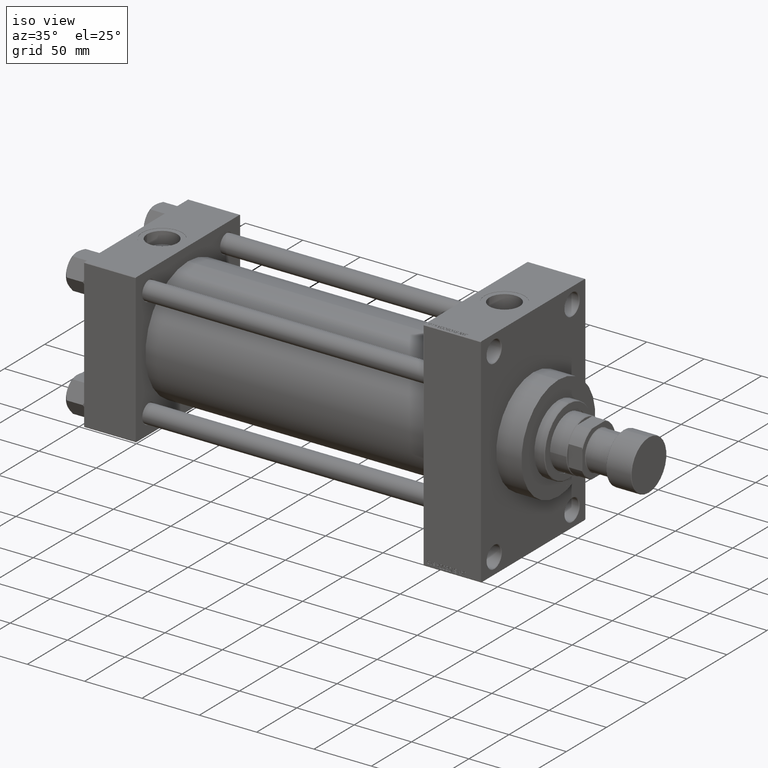
[diagram: clean part render]
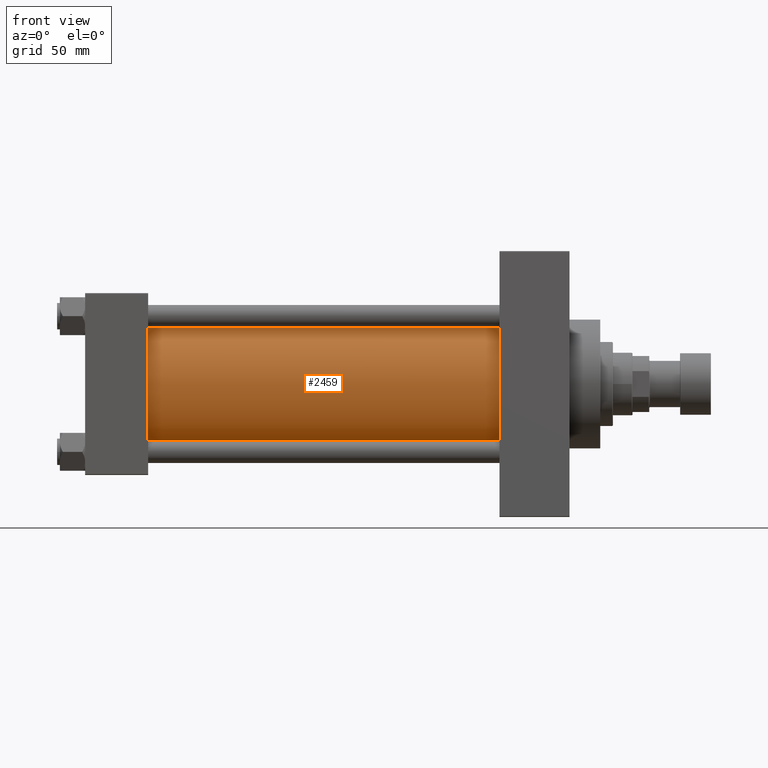
[diagram: tour spotlight — one face highlighted and labeled with its STEP entity id]
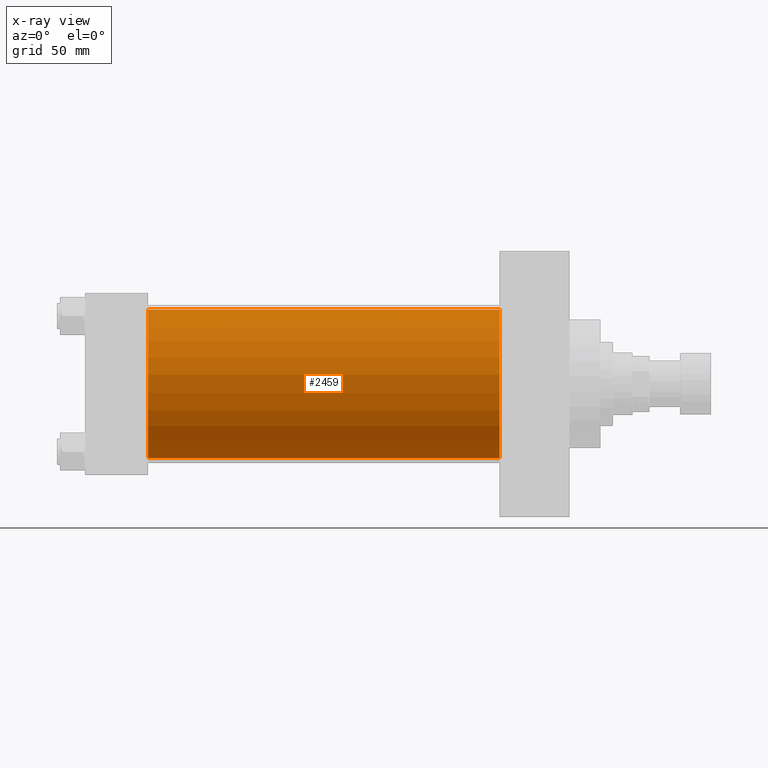
[diagram: x-ray of the same camera — body ghosted, this tour face saturated]
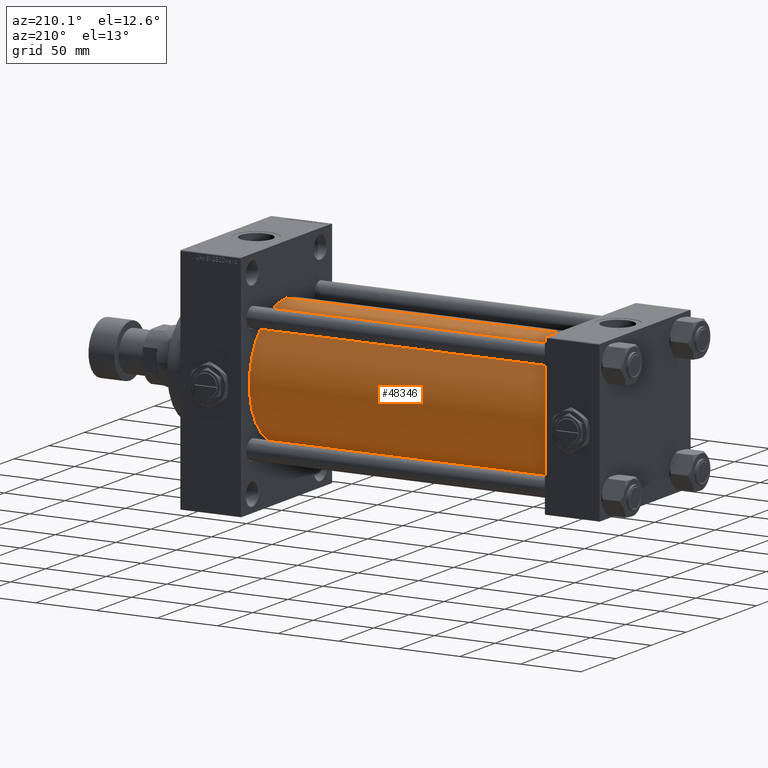
[diagram: tour spotlight — one face highlighted and labeled with its STEP entity id]
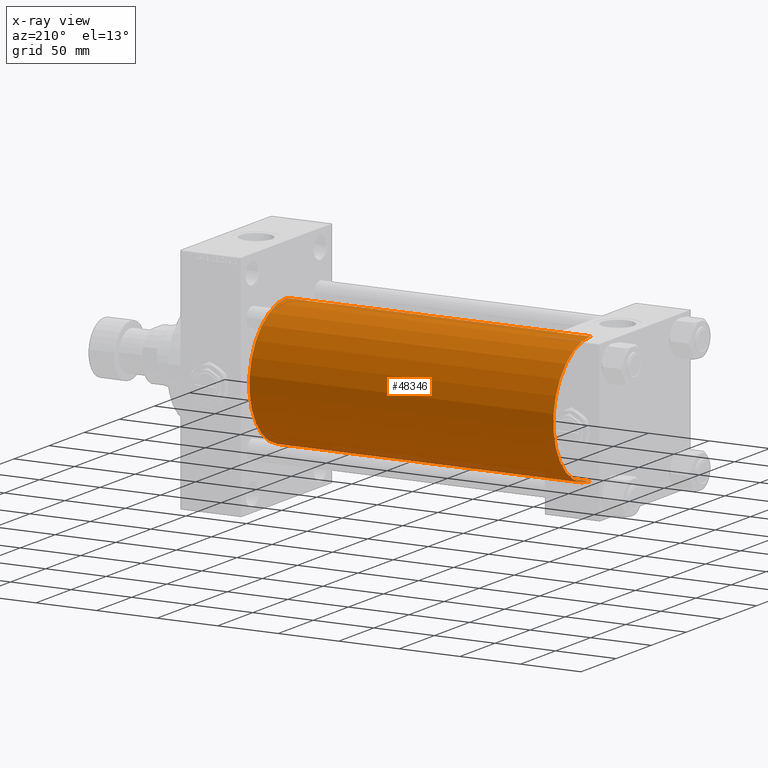
[diagram: x-ray of the same camera — body ghosted, this tour face saturated]
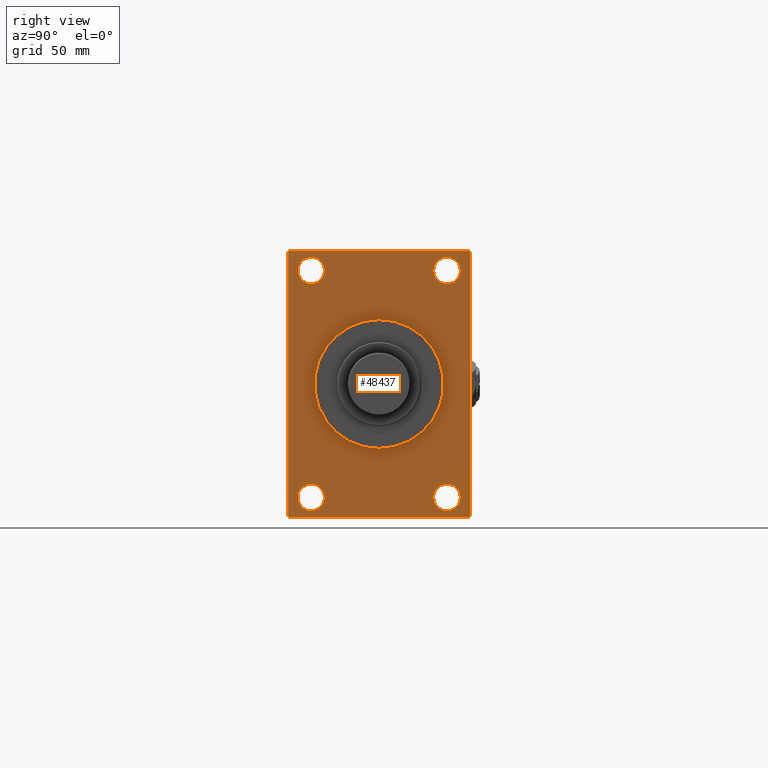
[diagram: tour spotlight — one face highlighted and labeled with its STEP entity id]
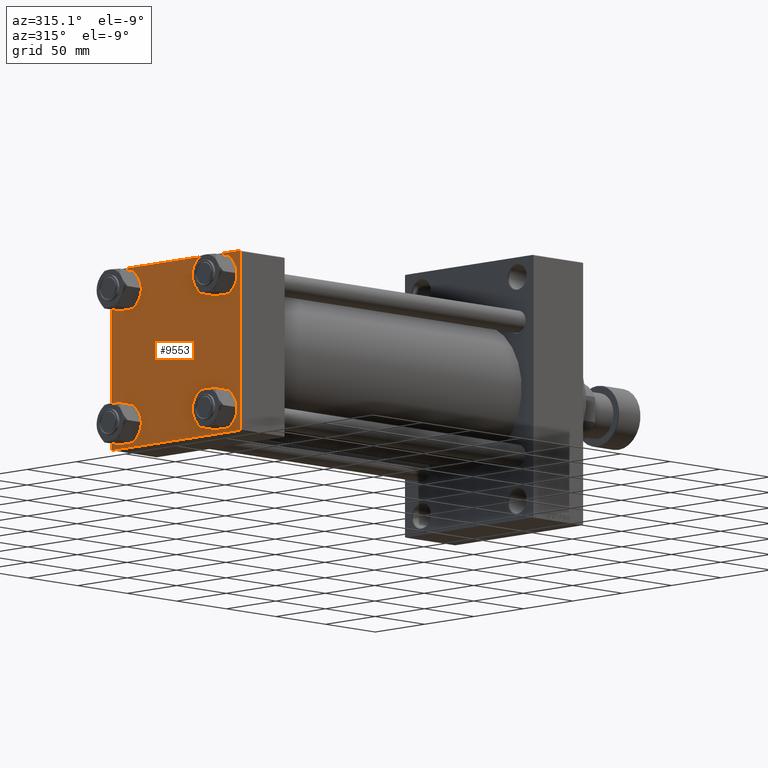
[diagram: tour spotlight — one face highlighted and labeled with its STEP entity id]
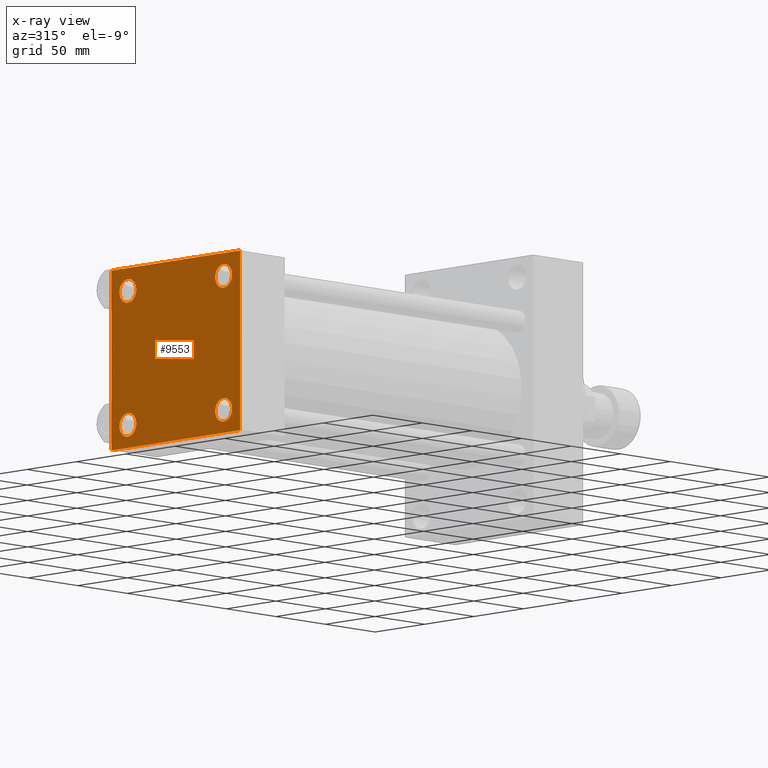
[diagram: x-ray of the same camera — body ghosted, this tour face saturated]
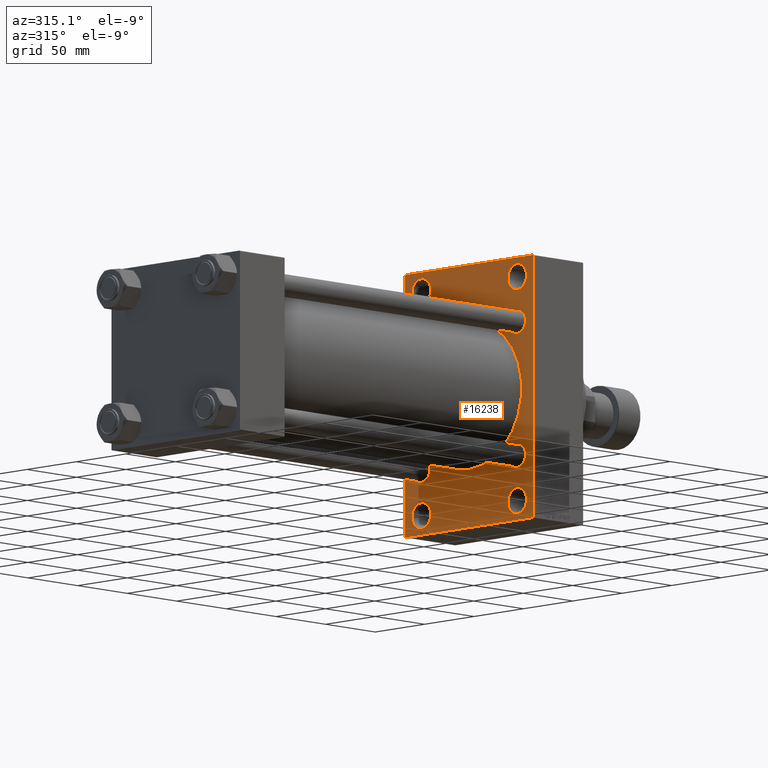
[diagram: tour spotlight — one face highlighted and labeled with its STEP entity id]
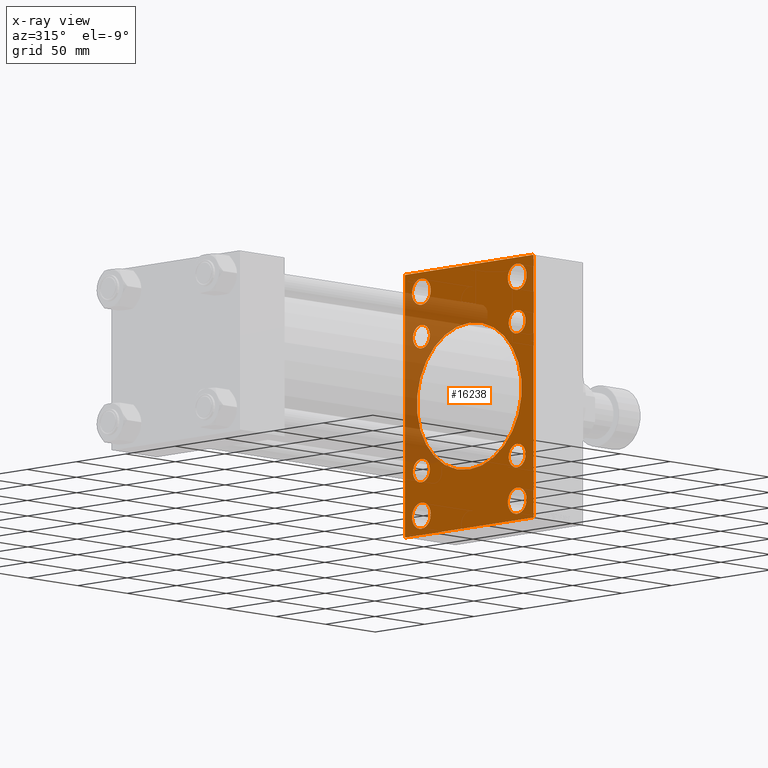
[diagram: x-ray of the same camera — body ghosted, this tour face saturated]
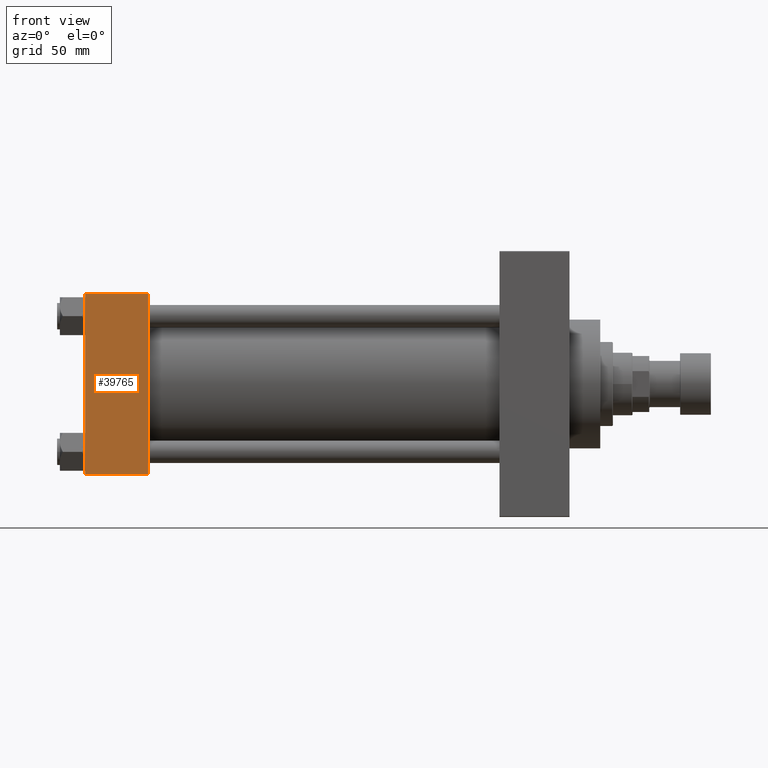
[diagram: tour spotlight — one face highlighted and labeled with its STEP entity id]
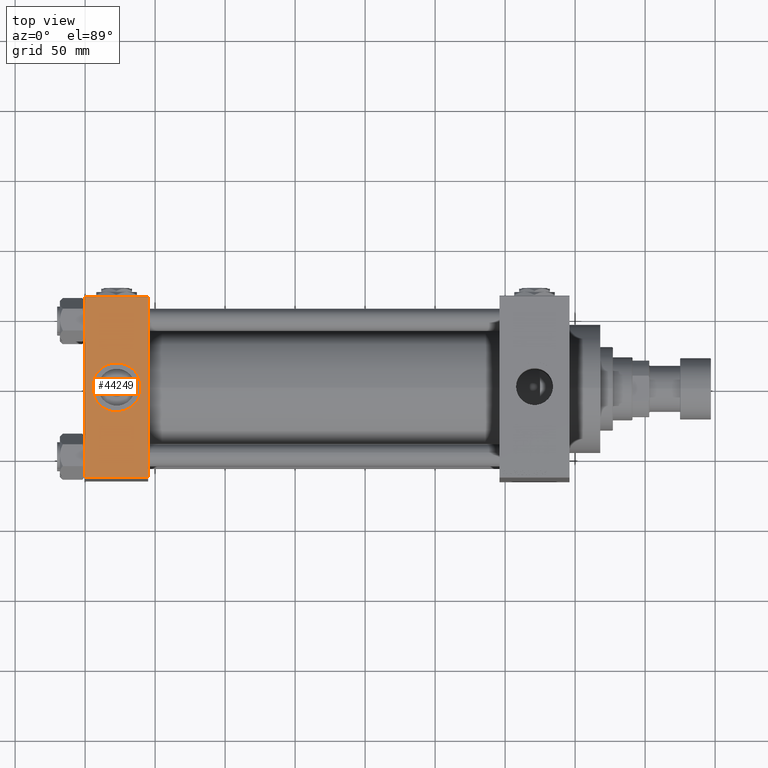
[diagram: tour spotlight — one face highlighted and labeled with its STEP entity id]
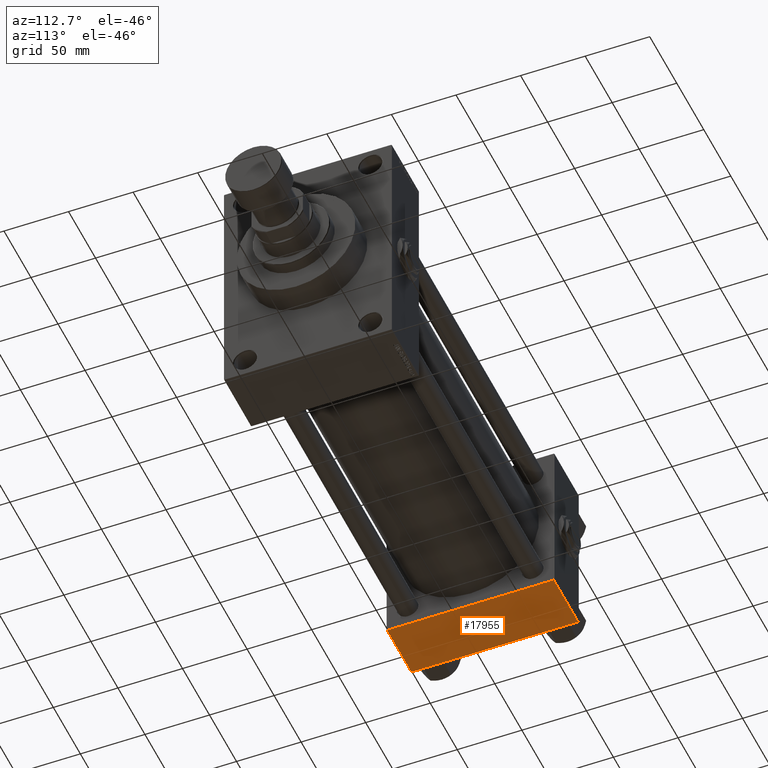
[diagram: tour spotlight — one face highlighted and labeled with its STEP entity id]
A machine part: a face-by-face anatomy tour. The part has 1265 B-rep faces; the first image is the clean iso view, then the 8 largest visible faces are spotlighted one at a time (largest first), each with its STEP entity span.

Face 1 — front view, entity #2459. An x-ray twin of the same camera follows (body ghosted, this face saturated) — the face is partly hidden behind the body. In plain terms, the highlighted cylindrical surface (partial cylindrical patch) has radius 53 mm, axis along (-1, -0, -0).
Definition (entity closure, byte-faithful):
#2459 = ADVANCED_FACE ( 'NONE', ( #12607 ), #39832, .T. ) ;
#3600 = VERTEX_POINT ( 'NONE', #27579 ) ;
#4059 = EDGE_CURVE ( 'NONE', #32238, #38170, #18780, .T. ) ;
#4940 = AXIS2_PLACEMENT_3D ( 'NONE', #42910, #28129, #47708 ) ;
#6213 = CARTESIAN_POINT ( 'NONE',  ( 296.0000000000000000, 3.888542821515762466E-15, -53.00000000000000711 ) ) ;
#6894 = DIRECTION ( 'NONE',  ( 0.000000000000000000, 0.000000000000000000, -1.000000000000000000 ) ) ;
#7390 = DIRECTION ( 'NONE',  ( 1.000000000000000000, 0.000000000000000000, 0.000000000000000000 ) ) ;
#8542 = DIRECTION ( 'NONE',  ( -1.000000000000000000, -0.000000000000000000, -0.000000000000000000 ) ) ;
#9348 = ORIENTED_EDGE ( 'NONE', *, *, #4059, .F. ) ;
#11306 = DIRECTION ( 'NONE',  ( 1.000000000000000000, -0.000000000000000000, 0.000000000000000000 ) ) ;
#12607 = FACE_OUTER_BOUND ( 'NONE', #28659, .T. ) ;
#15178 = LINE ( 'NONE', #43139, #21009 ) ;
#16358 = ORIENTED_EDGE ( 'NONE', *, *, #45981, .T. ) ;
#18780 = CIRCLE ( 'NONE', #47201, 53.00000000000000711 ) ;
#20724 = CARTESIAN_POINT ( 'NONE',  ( 44.99999999999998579, 3.888542821515762466E-15, -53.00000000000000711 ) ) ;
#21009 = VECTOR ( 'NONE', #8542, 1000.000000000000000 ) ;
#21358 = ORIENTED_EDGE ( 'NONE', *, *, #31950, .F. ) ;
#22586 = ORIENTED_EDGE ( 'NONE', *, *, #33574, .T. ) ;
#24459 = CARTESIAN_POINT ( 'NONE',  ( 296.0000000000000000, -2.602085213965210642E-15, 53.00000000000000711 ) ) ;
#26816 = CARTESIAN_POINT ( 'NONE',  ( 296.0000000000000000, 3.888542821515762466E-15, -53.00000000000000711 ) ) ;
#27579 = CARTESIAN_POINT ( 'NONE',  ( 44.99999999999998579, -2.602085213965210642E-15, 53.00000000000000711 ) ) ;
#28129 = DIRECTION ( 'NONE',  ( -1.000000000000000000, -0.000000000000000000, -0.000000000000000000 ) ) ;
#28659 = EDGE_LOOP ( 'NONE', ( #21358, #9348, #22586, #16358 ) ) ;
#31151 = DIRECTION ( 'NONE',  ( 0.000000000000000000, 0.000000000000000000, 1.000000000000000000 ) ) ;
#31950 = EDGE_CURVE ( 'NONE', #38170, #42066, #40801, .T. ) ;
#32238 = VERTEX_POINT ( 'NONE', #24459 ) ;
#32715 = AXIS2_PLACEMENT_3D ( 'NONE', #46163, #11306, #31151 ) ;
#33574 = EDGE_CURVE ( 'NONE', #32238, #3600, #15178, .T. ) ;
#34342 = CARTESIAN_POINT ( 'NONE',  ( 296.0000000000000000, -2.602085213965210642E-15, 0.000000000000000000 ) ) ;
#38170 = VERTEX_POINT ( 'NONE', #26816 ) ;
#39832 = CYLINDRICAL_SURFACE ( 'NONE', #4940, 53.00000000000000711 ) ;
#40801 = LINE ( 'NONE', #6213, #47718 ) ;
#42066 = VERTEX_POINT ( 'NONE', #20724 ) ;
#42910 = CARTESIAN_POINT ( 'NONE',  ( 296.0000000000000000, -2.602085213965210642E-15, 0.000000000000000000 ) ) ;
#43139 = CARTESIAN_POINT ( 'NONE',  ( 296.0000000000000000, -2.602085213965210642E-15, 53.00000000000000711 ) ) ;
#45981 = EDGE_CURVE ( 'NONE', #3600, #42066, #49737, .T. ) ;
#46163 = CARTESIAN_POINT ( 'NONE',  ( 44.99999999999998579, -2.602085213965210642E-15, 0.000000000000000000 ) ) ;
#47201 = AXIS2_PLACEMENT_3D ( 'NONE', #34342, #7390, #6894 ) ;
#47708 = DIRECTION ( 'NONE',  ( 0.000000000000000000, 0.000000000000000000, 1.000000000000000000 ) ) ;
#47718 = VECTOR ( 'NONE', #47919, 1000.000000000000000 ) ;
#47919 = DIRECTION ( 'NONE',  ( -1.000000000000000000, -0.000000000000000000, -0.000000000000000000 ) ) ;
#49737 = CIRCLE ( 'NONE', #32715, 53.00000000000000711 ) ;

Face 2 — auxiliary view, entity #48346. An x-ray twin of the same camera follows (body ghosted, this face saturated) — the face is partly hidden behind the body. In plain terms, the highlighted cylindrical surface (partial cylindrical patch) has radius 53 mm, axis along (-1, -0, -0).
Definition (entity closure, byte-faithful):
#86 = DIRECTION ( 'NONE',  ( 0.000000000000000000, 0.000000000000000000, 1.000000000000000000 ) ) ;
#682 = DIRECTION ( 'NONE',  ( 0.000000000000000000, 0.000000000000000000, 1.000000000000000000 ) ) ;
#3363 = DIRECTION ( 'NONE',  ( 0.000000000000000000, 0.000000000000000000, -1.000000000000000000 ) ) ;
#3600 = VERTEX_POINT ( 'NONE', #27579 ) ;
#6213 = CARTESIAN_POINT ( 'NONE',  ( 296.0000000000000000, 3.888542821515762466E-15, -53.00000000000000711 ) ) ;
#8279 = CARTESIAN_POINT ( 'NONE',  ( 44.99999999999998579, -2.602085213965210642E-15, 0.000000000000000000 ) ) ;
#8542 = DIRECTION ( 'NONE',  ( -1.000000000000000000, -0.000000000000000000, -0.000000000000000000 ) ) ;
#9171 = ORIENTED_EDGE ( 'NONE', *, *, #40411, .F. ) ;
#10707 = CIRCLE ( 'NONE', #44017, 53.00000000000000711 ) ;
#12218 = CARTESIAN_POINT ( 'NONE',  ( 296.0000000000000000, -2.602085213965210642E-15, 0.000000000000000000 ) ) ;
#15178 = LINE ( 'NONE', #43139, #21009 ) ;
#20424 = EDGE_CURVE ( 'NONE', #42066, #3600, #40961, .T. ) ;
#20724 = CARTESIAN_POINT ( 'NONE',  ( 44.99999999999998579, 3.888542821515762466E-15, -53.00000000000000711 ) ) ;
#21009 = VECTOR ( 'NONE', #8542, 1000.000000000000000 ) ;
#23793 = DIRECTION ( 'NONE',  ( 1.000000000000000000, -0.000000000000000000, 0.000000000000000000 ) ) ;
#24459 = CARTESIAN_POINT ( 'NONE',  ( 296.0000000000000000, -2.602085213965210642E-15, 53.00000000000000711 ) ) ;
#26745 = DIRECTION ( 'NONE',  ( 1.000000000000000000, 0.000000000000000000, 0.000000000000000000 ) ) ;
#26816 = CARTESIAN_POINT ( 'NONE',  ( 296.0000000000000000, 3.888542821515762466E-15, -53.00000000000000711 ) ) ;
#27579 = CARTESIAN_POINT ( 'NONE',  ( 44.99999999999998579, -2.602085213965210642E-15, 53.00000000000000711 ) ) ;
#27745 = DIRECTION ( 'NONE',  ( -1.000000000000000000, -0.000000000000000000, -0.000000000000000000 ) ) ;
#30158 = EDGE_LOOP ( 'NONE', ( #9171, #46576, #32965, #48194 ) ) ;
#30384 = AXIS2_PLACEMENT_3D ( 'NONE', #8279, #23793, #682 ) ;
#31065 = FACE_OUTER_BOUND ( 'NONE', #30158, .T. ) ;
#31950 = EDGE_CURVE ( 'NONE', #38170, #42066, #40801, .T. ) ;
#32238 = VERTEX_POINT ( 'NONE', #24459 ) ;
#32965 = ORIENTED_EDGE ( 'NONE', *, *, #20424, .T. ) ;
#33574 = EDGE_CURVE ( 'NONE', #32238, #3600, #15178, .T. ) ;
#38170 = VERTEX_POINT ( 'NONE', #26816 ) ;
#40411 = EDGE_CURVE ( 'NONE', #38170, #32238, #10707, .T. ) ;
#40801 = LINE ( 'NONE', #6213, #47718 ) ;
#40961 = CIRCLE ( 'NONE', #30384, 53.00000000000000711 ) ;
#42066 = VERTEX_POINT ( 'NONE', #20724 ) ;
#43139 = CARTESIAN_POINT ( 'NONE',  ( 296.0000000000000000, -2.602085213965210642E-15, 53.00000000000000711 ) ) ;
#44017 = AXIS2_PLACEMENT_3D ( 'NONE', #47067, #26745, #3363 ) ;
#45009 = AXIS2_PLACEMENT_3D ( 'NONE', #12218, #27745, #86 ) ;
#46576 = ORIENTED_EDGE ( 'NONE', *, *, #31950, .T. ) ;
#47067 = CARTESIAN_POINT ( 'NONE',  ( 296.0000000000000000, -2.602085213965210642E-15, 0.000000000000000000 ) ) ;
#47072 = CYLINDRICAL_SURFACE ( 'NONE', #45009, 53.00000000000000711 ) ;
#47718 = VECTOR ( 'NONE', #47919, 1000.000000000000000 ) ;
#47919 = DIRECTION ( 'NONE',  ( -1.000000000000000000, -0.000000000000000000, -0.000000000000000000 ) ) ;
#48194 = ORIENTED_EDGE ( 'NONE', *, *, #33574, .F. ) ;
#48346 = ADVANCED_FACE ( 'NONE', ( #31065 ), #47072, .T. ) ;

Face 3 — right view, entity #48437. In plain terms, the highlighted planar face has unit normal (-1, 0, 0).
Definition (entity closure, byte-faithful):
#64 = CIRCLE ( 'NONE', #8946, 9.500000000000008882 ) ;
#706 = AXIS2_PLACEMENT_3D ( 'NONE', #24336, #20035, #31473 ) ;
#848 = CARTESIAN_POINT ( 'NONE',  ( 346.0000000000000000, 48.50000000000000711, -90.50000000000002842 ) ) ;
#864 = ORIENTED_EDGE ( 'NONE', *, *, #39338, .T. ) ;
#1061 = FACE_BOUND ( 'NONE', #41959, .T. ) ;
#1236 = CARTESIAN_POINT ( 'NONE',  ( 346.0000000000000000, 64.99999999999997158, 94.49999999999997158 ) ) ;
#1329 = CIRCLE ( 'NONE', #12644, 9.500000000000008882 ) ;
#1569 = FACE_OUTER_BOUND ( 'NONE', #47506, .T. ) ;
#2072 = DIRECTION ( 'NONE',  ( -1.000000000000000000, 0.000000000000000000, -0.000000000000000000 ) ) ;
#2332 = CARTESIAN_POINT ( 'NONE',  ( 346.0000000000000000, -48.49999999999999289, -90.50000000000002842 ) ) ;
#2382 = CARTESIAN_POINT ( 'NONE',  ( 346.0000000000000000, 64.49999999999987210, -95.00000000000001421 ) ) ;
#2599 = DIRECTION ( 'NONE',  ( 1.000000000000000000, 0.000000000000000000, 0.000000000000000000 ) ) ;
#2608 = CARTESIAN_POINT ( 'NONE',  ( 346.0000000000000000, 48.50000000000000711, 90.50000000000001421 ) ) ;
#2611 = DIRECTION ( 'NONE',  ( -1.000000000000000000, 0.000000000000000000, -0.000000000000000000 ) ) ;
#3205 = CARTESIAN_POINT ( 'NONE',  ( 346.0000000000000000, -65.00000000000001421, 94.99999999999997158 ) ) ;
#4249 = ORIENTED_EDGE ( 'NONE', *, *, #35345, .T. ) ;
#5747 = DIRECTION ( 'NONE',  ( 0.000000000000000000, 0.000000000000000000, 1.000000000000000000 ) ) ;
#5750 = VECTOR ( 'NONE', #25060, 1000.000000000000114 ) ;
#6383 = AXIS2_PLACEMENT_3D ( 'NONE', #21751, #33189, #29868 ) ;
#6440 = CARTESIAN_POINT ( 'NONE',  ( 346.0000000000000000, 48.50000000000000711, -81.00000000000001421 ) ) ;
#6507 = DIRECTION ( 'NONE',  ( 0.000000000000000000, 0.000000000000000000, -1.000000000000000000 ) ) ;
#6846 = AXIS2_PLACEMENT_3D ( 'NONE', #36883, #2072, #47322 ) ;
#7119 = VECTOR ( 'NONE', #29342, 1000.000000000000000 ) ;
#7366 = CARTESIAN_POINT ( 'NONE',  ( 346.0000000000000000, 48.50000000000000711, -71.50000000000001421 ) ) ;
#7572 = VECTOR ( 'NONE', #44175, 1000.000000000000000 ) ;
#8431 = DIRECTION ( 'NONE',  ( -1.000000000000000000, 0.000000000000000000, -0.000000000000000000 ) ) ;
#8946 = AXIS2_PLACEMENT_3D ( 'NONE', #6440, #33653, #45684 ) ;
#9192 = ORIENTED_EDGE ( 'NONE', *, *, #44948, .T. ) ;
#9667 = FACE_BOUND ( 'NONE', #25546, .T. ) ;
#10407 = VERTEX_POINT ( 'NONE', #15619 ) ;
#10579 = VERTEX_POINT ( 'NONE', #2382 ) ;
#11231 = DIRECTION ( 'NONE',  ( 1.000000000000000000, 0.000000000000000000, 0.000000000000000000 ) ) ;
#12644 = AXIS2_PLACEMENT_3D ( 'NONE', #36250, #13351, #29120 ) ;
#13138 = CIRCLE ( 'NONE', #34286, 46.00000000000000000 ) ;
#13351 = DIRECTION ( 'NONE',  ( -1.000000000000000000, 0.000000000000000000, -0.000000000000000000 ) ) ;
#13392 = VERTEX_POINT ( 'NONE', #7366 ) ;
#13473 = EDGE_LOOP ( 'NONE', ( #22047, #36802 ) ) ;
#13987 = AXIS2_PLACEMENT_3D ( 'NONE', #22075, #29950, #33781 ) ;
#14779 = ORIENTED_EDGE ( 'NONE', *, *, #18515, .T. ) ;
#15062 = CARTESIAN_POINT ( 'NONE',  ( 346.0000000000000000, 0.000000000000000000, 0.000000000000000000 ) ) ;
#15526 = ORIENTED_EDGE ( 'NONE', *, *, #32254, .T. ) ;
#15619 = CARTESIAN_POINT ( 'NONE',  ( 346.0000000000000000, 5.633375276077824704E-15, -46.00000000000000000 ) ) ;
#15829 = EDGE_CURVE ( 'NONE', #18474, #39877, #27343, .T. ) ;
#16330 = ORIENTED_EDGE ( 'NONE', *, *, #32427, .T. ) ;
#16593 = CARTESIAN_POINT ( 'NONE',  ( 346.0000000000000000, -65.00000000000001421, 94.49999999999997158 ) ) ;
#16993 = CARTESIAN_POINT ( 'NONE',  ( 346.0000000000000000, -48.49999999999999289, -71.50000000000001421 ) ) ;
#17094 = VERTEX_POINT ( 'NONE', #32853 ) ;
#17443 = LINE ( 'NONE', #20752, #5750 ) ;
#18088 = ORIENTED_EDGE ( 'NONE', *, *, #30355, .T. ) ;
#18108 = DIRECTION ( 'NONE',  ( 0.000000000000000000, 0.000000000000000000, 1.000000000000000000 ) ) ;
#18474 = VERTEX_POINT ( 'NONE', #45175 ) ;
#18515 = EDGE_CURVE ( 'NONE', #39183, #18474, #29400, .T. ) ;
#18766 = CARTESIAN_POINT ( 'NONE',  ( 346.0000000000000000, 64.99999999999997158, 94.99999999999997158 ) ) ;
#19102 = DIRECTION ( 'NONE',  ( 0.000000000000000000, 0.000000000000000000, -1.000000000000000000 ) ) ;
#19223 = EDGE_CURVE ( 'NONE', #38764, #42321, #34042, .T. ) ;
#19670 = EDGE_LOOP ( 'NONE', ( #18088, #9192 ) ) ;
#19682 = ORIENTED_EDGE ( 'NONE', *, *, #19223, .T. ) ;
#20035 = DIRECTION ( 'NONE',  ( -1.000000000000000000, 0.000000000000000000, -0.000000000000000000 ) ) ;
#20534 = AXIS2_PLACEMENT_3D ( 'NONE', #34352, #2599, #19102 ) ;
#20752 = CARTESIAN_POINT ( 'NONE',  ( 346.0000000000000000, 64.99999999999998579, -94.49999999999997158 ) ) ;
#21235 = VERTEX_POINT ( 'NONE', #40409 ) ;
#21381 = PLANE ( 'NONE',  #6846 ) ;
#21751 = CARTESIAN_POINT ( 'NONE',  ( 346.0000000000000000, 48.50000000000000711, 81.00000000000000000 ) ) ;
#21887 = CARTESIAN_POINT ( 'NONE',  ( 346.0000000000000000, 0.000000000000000000, 46.00000000000000000 ) ) ;
#21931 = CARTESIAN_POINT ( 'NONE',  ( 346.0000000000000000, 48.50000000000000711, 71.50000000000000000 ) ) ;
#22047 = ORIENTED_EDGE ( 'NONE', *, *, #33927, .T. ) ;
#22075 = CARTESIAN_POINT ( 'NONE',  ( 346.0000000000000000, -48.49999999999999289, -81.00000000000001421 ) ) ;
#22082 = LINE ( 'NONE', #18766, #44291 ) ;
#22591 = CARTESIAN_POINT ( 'NONE',  ( 346.0000000000000000, -65.00000000000001421, 94.49999999999997158 ) ) ;
#23189 = EDGE_CURVE ( 'NONE', #42321, #25416, #22082, .T. ) ;
#23356 = DIRECTION ( 'NONE',  ( -0.000000000000000000, -0.7071067811865378028, -0.7071067811865573427 ) ) ;
#23957 = ORIENTED_EDGE ( 'NONE', *, *, #46549, .F. ) ;
#24336 = CARTESIAN_POINT ( 'NONE',  ( 346.0000000000000000, 48.50000000000000711, -81.00000000000001421 ) ) ;
#25060 = DIRECTION ( 'NONE',  ( -0.000000000000000000, 0.7071067811865965336, 0.7071067811864985009 ) ) ;
#25121 = EDGE_CURVE ( 'NONE', #36408, #40270, #1329, .T. ) ;
#25340 = LINE ( 'NONE', #28916, #7572 ) ;
#25416 = VERTEX_POINT ( 'NONE', #45271 ) ;
#25546 = EDGE_LOOP ( 'NONE', ( #4249, #864 ) ) ;
#25863 = ORIENTED_EDGE ( 'NONE', *, *, #15829, .T. ) ;
#27258 = ORIENTED_EDGE ( 'NONE', *, *, #42593, .F. ) ;
#27343 = LINE ( 'NONE', #30891, #46585 ) ;
#27884 = EDGE_CURVE ( 'NONE', #38764, #17094, #41546, .T. ) ;
#28019 = EDGE_LOOP ( 'NONE', ( #27258, #44296 ) ) ;
#28261 = VERTEX_POINT ( 'NONE', #848 ) ;
#28847 = CARTESIAN_POINT ( 'NONE',  ( 346.0000000000000000, -48.50000000000000000, 71.50000000000000000 ) ) ;
#28916 = CARTESIAN_POINT ( 'NONE',  ( 346.0000000000000000, 64.99999999999998579, -95.00000000000001421 ) ) ;
#29028 = AXIS2_PLACEMENT_3D ( 'NONE', #40100, #40596, #5747 ) ;
#29120 = DIRECTION ( 'NONE',  ( 0.000000000000000000, 0.000000000000000000, 1.000000000000000000 ) ) ;
#29342 = DIRECTION ( 'NONE',  ( 0.000000000000000000, 7.304098846218135653E-17, -1.000000000000000000 ) ) ;
#29400 = LINE ( 'NONE', #3205, #44147 ) ;
#29848 = ORIENTED_EDGE ( 'NONE', *, *, #36203, .T. ) ;
#29868 = DIRECTION ( 'NONE',  ( 0.000000000000000000, 0.000000000000000000, 1.000000000000000000 ) ) ;
#29950 = DIRECTION ( 'NONE',  ( -1.000000000000000000, 0.000000000000000000, -0.000000000000000000 ) ) ;
#30355 = EDGE_CURVE ( 'NONE', #44605, #40691, #34807, .T. ) ;
#30891 = CARTESIAN_POINT ( 'NONE',  ( 346.0000000000000000, -64.50000000000001421, -95.00000000000002842 ) ) ;
#30911 = ORIENTED_EDGE ( 'NONE', *, *, #27884, .F. ) ;
#30974 = LINE ( 'NONE', #22591, #37196 ) ;
#31473 = DIRECTION ( 'NONE',  ( 0.000000000000000000, 0.000000000000000000, 1.000000000000000000 ) ) ;
#31930 = VERTEX_POINT ( 'NONE', #28847 ) ;
#32254 = EDGE_CURVE ( 'NONE', #25416, #39183, #30974, .T. ) ;
#32281 = ORIENTED_EDGE ( 'NONE', *, *, #38112, .T. ) ;
#32427 = EDGE_CURVE ( 'NONE', #28261, #13392, #34768, .T. ) ;
#32679 = CIRCLE ( 'NONE', #13987, 9.500000000000008882 ) ;
#32853 = CARTESIAN_POINT ( 'NONE',  ( 346.0000000000000000, 64.99999999999998579, -94.49999999999997158 ) ) ;
#33189 = DIRECTION ( 'NONE',  ( -1.000000000000000000, 0.000000000000000000, -0.000000000000000000 ) ) ;
#33653 = DIRECTION ( 'NONE',  ( -1.000000000000000000, 0.000000000000000000, -0.000000000000000000 ) ) ;
#33781 = DIRECTION ( 'NONE',  ( 0.000000000000000000, 0.000000000000000000, 1.000000000000000000 ) ) ;
#33920 = CARTESIAN_POINT ( 'NONE',  ( 346.0000000000000000, 64.49999999999997158, 94.99999999999997158 ) ) ;
#33927 = EDGE_CURVE ( 'NONE', #40270, #36408, #46995, .T. ) ;
#34042 = LINE ( 'NONE', #38100, #37673 ) ;
#34073 = CIRCLE ( 'NONE', #35701, 9.500000000000008882 ) ;
#34286 = AXIS2_PLACEMENT_3D ( 'NONE', #15062, #11231, #46083 ) ;
#34352 = CARTESIAN_POINT ( 'NONE',  ( 346.0000000000000000, 0.000000000000000000, 0.000000000000000000 ) ) ;
#34714 = DIRECTION ( 'NONE',  ( 0.000000000000000000, 0.7071067811865474617, -0.7071067811865474617 ) ) ;
#34768 = CIRCLE ( 'NONE', #706, 9.500000000000008882 ) ;
#34807 = CIRCLE ( 'NONE', #29028, 9.500000000000008882 ) ;
#35345 = EDGE_CURVE ( 'NONE', #31930, #21235, #34073, .T. ) ;
#35701 = AXIS2_PLACEMENT_3D ( 'NONE', #42788, #8431, #43275 ) ;
#36132 = FACE_BOUND ( 'NONE', #19670, .T. ) ;
#36203 = EDGE_CURVE ( 'NONE', #13392, #28261, #64, .T. ) ;
#36250 = CARTESIAN_POINT ( 'NONE',  ( 346.0000000000000000, 48.50000000000000711, 81.00000000000000000 ) ) ;
#36408 = VERTEX_POINT ( 'NONE', #2608 ) ;
#36802 = ORIENTED_EDGE ( 'NONE', *, *, #25121, .T. ) ;
#36883 = CARTESIAN_POINT ( 'NONE',  ( 346.0000000000000000, 0.000000000000000000, 0.000000000000000000 ) ) ;
#37178 = CARTESIAN_POINT ( 'NONE',  ( 346.0000000000000000, -48.50000000000000000, 81.00000000000000000 ) ) ;
#37196 = VECTOR ( 'NONE', #23356, 1000.000000000000000 ) ;
#37673 = VECTOR ( 'NONE', #42696, 1000.000000000000114 ) ;
#38100 = CARTESIAN_POINT ( 'NONE',  ( 346.0000000000000000, 64.49999999999997158, 94.99999999999997158 ) ) ;
#38112 = EDGE_CURVE ( 'NONE', #10579, #17094, #17443, .T. ) ;
#38764 = VERTEX_POINT ( 'NONE', #1236 ) ;
#39183 = VERTEX_POINT ( 'NONE', #16593 ) ;
#39338 = EDGE_CURVE ( 'NONE', #21235, #31930, #39886, .T. ) ;
#39877 = VERTEX_POINT ( 'NONE', #40823 ) ;
#39886 = CIRCLE ( 'NONE', #46376, 9.500000000000008882 ) ;
#40100 = CARTESIAN_POINT ( 'NONE',  ( 346.0000000000000000, -48.49999999999999289, -81.00000000000001421 ) ) ;
#40270 = VERTEX_POINT ( 'NONE', #21931 ) ;
#40409 = CARTESIAN_POINT ( 'NONE',  ( 346.0000000000000000, -48.50000000000000000, 90.50000000000001421 ) ) ;
#40596 = DIRECTION ( 'NONE',  ( -1.000000000000000000, 0.000000000000000000, -0.000000000000000000 ) ) ;
#40691 = VERTEX_POINT ( 'NONE', #16993 ) ;
#40823 = CARTESIAN_POINT ( 'NONE',  ( 346.0000000000000000, -64.50000000000001421, -95.00000000000002842 ) ) ;
#41062 = CARTESIAN_POINT ( 'NONE',  ( 346.0000000000000000, 64.99999999999997158, 94.99999999999997158 ) ) ;
#41223 = EDGE_CURVE ( 'NONE', #10407, #41325, #13138, .T. ) ;
#41325 = VERTEX_POINT ( 'NONE', #21887 ) ;
#41546 = LINE ( 'NONE', #41062, #7119 ) ;
#41959 = EDGE_LOOP ( 'NONE', ( #16330, #29848 ) ) ;
#42321 = VERTEX_POINT ( 'NONE', #33920 ) ;
#42593 = EDGE_CURVE ( 'NONE', #41325, #10407, #46530, .T. ) ;
#42696 = DIRECTION ( 'NONE',  ( 0.000000000000000000, -0.7071067811865474617, 0.7071067811865474617 ) ) ;
#42788 = CARTESIAN_POINT ( 'NONE',  ( 346.0000000000000000, -48.50000000000000000, 81.00000000000000000 ) ) ;
#43275 = DIRECTION ( 'NONE',  ( 0.000000000000000000, 0.000000000000000000, 1.000000000000000000 ) ) ;
#43624 = ORIENTED_EDGE ( 'NONE', *, *, #23189, .T. ) ;
#44147 = VECTOR ( 'NONE', #6507, 1000.000000000000000 ) ;
#44175 = DIRECTION ( 'NONE',  ( 0.000000000000000000, -1.000000000000000000, -1.067522139062650425E-16 ) ) ;
#44291 = VECTOR ( 'NONE', #46228, 1000.000000000000000 ) ;
#44296 = ORIENTED_EDGE ( 'NONE', *, *, #41223, .F. ) ;
#44522 = FACE_BOUND ( 'NONE', #28019, .T. ) ;
#44605 = VERTEX_POINT ( 'NONE', #2332 ) ;
#44948 = EDGE_CURVE ( 'NONE', #40691, #44605, #32679, .T. ) ;
#45175 = CARTESIAN_POINT ( 'NONE',  ( 346.0000000000000000, -65.00000000000001421, -94.50000000000002842 ) ) ;
#45271 = CARTESIAN_POINT ( 'NONE',  ( 346.0000000000000000, -64.50000000000002842, 94.99999999999997158 ) ) ;
#45684 = DIRECTION ( 'NONE',  ( 0.000000000000000000, 0.000000000000000000, 1.000000000000000000 ) ) ;
#46083 = DIRECTION ( 'NONE',  ( 0.000000000000000000, 0.000000000000000000, -1.000000000000000000 ) ) ;
#46228 = DIRECTION ( 'NONE',  ( 0.000000000000000000, -1.000000000000000000, 0.000000000000000000 ) ) ;
#46376 = AXIS2_PLACEMENT_3D ( 'NONE', #37178, #2611, #18108 ) ;
#46530 = CIRCLE ( 'NONE', #20534, 46.00000000000000000 ) ;
#46549 = EDGE_CURVE ( 'NONE', #10579, #39877, #25340, .T. ) ;
#46585 = VECTOR ( 'NONE', #34714, 1000.000000000000114 ) ;
#46995 = CIRCLE ( 'NONE', #6383, 9.500000000000008882 ) ;
#47322 = DIRECTION ( 'NONE',  ( -0.000000000000000000, 0.000000000000000000, 1.000000000000000000 ) ) ;
#47506 = EDGE_LOOP ( 'NONE', ( #14779, #25863, #23957, #32281, #30911, #19682, #43624, #15526 ) ) ;
#48331 = FACE_BOUND ( 'NONE', #13473, .T. ) ;
#48437 = ADVANCED_FACE ( 'NONE', ( #9667, #36132, #1061, #48331, #44522, #1569 ), #21381, .F. ) ;

Face 4 — auxiliary view, entity #9553. An x-ray twin of the same camera follows (body ghosted, this face saturated) — the face is partly hidden behind the body. In plain terms, the highlighted planar face has unit normal (-1, 0, 0).
Definition (entity closure, byte-faithful):
#1694 = DIRECTION ( 'NONE',  ( 1.000000000000000000, -0.000000000000000000, 0.000000000000000000 ) ) ;
#1902 = CARTESIAN_POINT ( 'NONE',  ( 0.000000000000000000, 65.00000000000000000, -64.49999999999995737 ) ) ;
#1938 = CARTESIAN_POINT ( 'NONE',  ( 0.000000000000000000, 48.45000000000000995, 39.95000000000000284 ) ) ;
#2043 = CARTESIAN_POINT ( 'NONE',  ( 0.000000000000000000, -48.44999999999999574, 48.45000000000003126 ) ) ;
#2099 = EDGE_CURVE ( 'NONE', #25187, #22057, #13832, .T. ) ;
#2345 = EDGE_CURVE ( 'NONE', #6979, #21300, #23080, .T. ) ;
#2508 = AXIS2_PLACEMENT_3D ( 'NONE', #15067, #14309, #6941 ) ;
#2553 = ORIENTED_EDGE ( 'NONE', *, *, #15889, .T. ) ;
#3283 = CARTESIAN_POINT ( 'NONE',  ( 0.000000000000000000, -48.44999999999999574, 56.95000000000003837 ) ) ;
#3739 = EDGE_CURVE ( 'NONE', #7782, #44947, #14069, .T. ) ;
#3788 = AXIS2_PLACEMENT_3D ( 'NONE', #6248, #1694, #17448 ) ;
#3953 = CARTESIAN_POINT ( 'NONE',  ( -0.000000000000000000, -64.74999999999819522, 64.75000000000179057 ) ) ;
#4265 = VECTOR ( 'NONE', #19330, 1000.000000000000114 ) ;
#4969 = CARTESIAN_POINT ( 'NONE',  ( 0.000000000000000000, 48.45000000000000995, -39.95000000000000284 ) ) ;
#5146 = EDGE_LOOP ( 'NONE', ( #32417, #11958, #27551, #21046, #25097, #2553, #36618, #34235 ) ) ;
#5586 = DIRECTION ( 'NONE',  ( 1.000000000000000000, -0.000000000000000000, 0.000000000000000000 ) ) ;
#5695 = DIRECTION ( 'NONE',  ( 0.000000000000000000, 0.000000000000000000, 1.000000000000000000 ) ) ;
#5900 = CIRCLE ( 'NONE', #40029, 8.500000000000007105 ) ;
#6248 = CARTESIAN_POINT ( 'NONE',  ( 0.000000000000000000, -48.44999999999999574, -48.45000000000003126 ) ) ;
#6415 = EDGE_CURVE ( 'NONE', #25350, #22787, #39167, .T. ) ;
#6941 = DIRECTION ( 'NONE',  ( 0.000000000000000000, 0.000000000000000000, 1.000000000000000000 ) ) ;
#6979 = VERTEX_POINT ( 'NONE', #26506 ) ;
#7097 = ORIENTED_EDGE ( 'NONE', *, *, #8355, .T. ) ;
#7131 = FACE_BOUND ( 'NONE', #43729, .T. ) ;
#7177 = CARTESIAN_POINT ( 'NONE',  ( 0.000000000000000000, 48.45000000000000995, -48.45000000000001705 ) ) ;
#7620 = LINE ( 'NONE', #26942, #28329 ) ;
#7782 = VERTEX_POINT ( 'NONE', #10093 ) ;
#7789 = LINE ( 'NONE', #19234, #26071 ) ;
#7879 = FACE_BOUND ( 'NONE', #39933, .T. ) ;
#8355 = EDGE_CURVE ( 'NONE', #33746, #43432, #16613, .T. ) ;
#8529 = EDGE_CURVE ( 'NONE', #22057, #25187, #11753, .T. ) ;
#8663 = EDGE_LOOP ( 'NONE', ( #17730, #23184 ) ) ;
#9010 = CARTESIAN_POINT ( 'NONE',  ( 0.000000000000000000, 64.49999999999997158, -64.99999999999998579 ) ) ;
#9141 = DIRECTION ( 'NONE',  ( 0.000000000000000000, 0.000000000000000000, 1.000000000000000000 ) ) ;
#9553 = ADVANCED_FACE ( 'NONE', ( #15006, #7879, #7131, #49834, #50080 ), #46028, .T. ) ;
#10093 = CARTESIAN_POINT ( 'NONE',  ( 0.000000000000000000, 64.49999999999997158, 65.00000000000001421 ) ) ;
#11188 = ORIENTED_EDGE ( 'NONE', *, *, #39107, .T. ) ;
#11443 = AXIS2_PLACEMENT_3D ( 'NONE', #37241, #14343, #30363 ) ;
#11638 = EDGE_LOOP ( 'NONE', ( #22417, #46425 ) ) ;
#11753 = CIRCLE ( 'NONE', #35319, 8.500000000000007105 ) ;
#11773 = VERTEX_POINT ( 'NONE', #21330 ) ;
#11958 = ORIENTED_EDGE ( 'NONE', *, *, #34362, .T. ) ;
#13084 = AXIS2_PLACEMENT_3D ( 'NONE', #22631, #23634, #22879 ) ;
#13096 = VECTOR ( 'NONE', #13567, 1000.000000000000000 ) ;
#13567 = DIRECTION ( 'NONE',  ( 0.000000000000000000, -1.000000000000000000, -1.067522139062650425E-16 ) ) ;
#13832 = CIRCLE ( 'NONE', #2508, 8.500000000000007105 ) ;
#13839 = AXIS2_PLACEMENT_3D ( 'NONE', #33511, #44966, #25624 ) ;
#14069 = LINE ( 'NONE', #32395, #13096 ) ;
#14309 = DIRECTION ( 'NONE',  ( 1.000000000000000000, -0.000000000000000000, 0.000000000000000000 ) ) ;
#14343 = DIRECTION ( 'NONE',  ( 1.000000000000000000, -0.000000000000000000, 0.000000000000000000 ) ) ;
#14677 = CARTESIAN_POINT ( 'NONE',  ( 0.000000000000000000, -65.00000000000000000, -64.49999999999991473 ) ) ;
#15006 = FACE_BOUND ( 'NONE', #8663, .T. ) ;
#15067 = CARTESIAN_POINT ( 'NONE',  ( 0.000000000000000000, 48.45000000000000995, 48.45000000000001705 ) ) ;
#15302 = DIRECTION ( 'NONE',  ( 0.000000000000000000, 0.000000000000000000, 1.000000000000000000 ) ) ;
#15889 = EDGE_CURVE ( 'NONE', #48563, #44947, #39290, .T. ) ;
#16613 = CIRCLE ( 'NONE', #32886, 8.500000000000007105 ) ;
#17448 = DIRECTION ( 'NONE',  ( 0.000000000000000000, 0.000000000000000000, 1.000000000000000000 ) ) ;
#17730 = ORIENTED_EDGE ( 'NONE', *, *, #46267, .T. ) ;
#19111 = CARTESIAN_POINT ( 'NONE',  ( 0.000000000000000000, 48.45000000000000995, -56.95000000000002416 ) ) ;
#19234 = CARTESIAN_POINT ( 'NONE',  ( 0.000000000000000000, -65.00000000000000000, 65.00000000000000000 ) ) ;
#19330 = DIRECTION ( 'NONE',  ( 0.000000000000000000, 0.7071067811865474617, -0.7071067811865474617 ) ) ;
#19806 = LINE ( 'NONE', #35552, #34941 ) ;
#20243 = CARTESIAN_POINT ( 'NONE',  ( 0.000000000000000000, -48.44999999999999574, -39.95000000000001705 ) ) ;
#20963 = CARTESIAN_POINT ( 'NONE',  ( 0.000000000000000000, -48.44999999999999574, 48.45000000000003126 ) ) ;
#21046 = ORIENTED_EDGE ( 'NONE', *, *, #2345, .T. ) ;
#21300 = VERTEX_POINT ( 'NONE', #14677 ) ;
#21330 = CARTESIAN_POINT ( 'NONE',  ( 0.000000000000000000, -48.44999999999999574, 39.95000000000001705 ) ) ;
#22057 = VERTEX_POINT ( 'NONE', #29205 ) ;
#22417 = ORIENTED_EDGE ( 'NONE', *, *, #8529, .T. ) ;
#22631 = CARTESIAN_POINT ( 'NONE',  ( 0.000000000000000000, 0.000000000000000000, 0.000000000000000000 ) ) ;
#22787 = VERTEX_POINT ( 'NONE', #1902 ) ;
#22879 = DIRECTION ( 'NONE',  ( -0.000000000000000000, 0.000000000000000000, 1.000000000000000000 ) ) ;
#23080 = LINE ( 'NONE', #27145, #25242 ) ;
#23184 = ORIENTED_EDGE ( 'NONE', *, *, #26805, .T. ) ;
#23633 = LINE ( 'NONE', #39147, #4265 ) ;
#23634 = DIRECTION ( 'NONE',  ( -1.000000000000000000, 0.000000000000000000, -0.000000000000000000 ) ) ;
#23681 = DIRECTION ( 'NONE',  ( 1.000000000000000000, -0.000000000000000000, 0.000000000000000000 ) ) ;
#24581 = VECTOR ( 'NONE', #42987, 1000.000000000000000 ) ;
#24680 = CARTESIAN_POINT ( 'NONE',  ( 0.000000000000000000, 65.00000000000000000, 64.49999999999998579 ) ) ;
#25025 = DIRECTION ( 'NONE',  ( 1.000000000000000000, -0.000000000000000000, 0.000000000000000000 ) ) ;
#25097 = ORIENTED_EDGE ( 'NONE', *, *, #38849, .F. ) ;
#25101 = VERTEX_POINT ( 'NONE', #47692 ) ;
#25187 = VERTEX_POINT ( 'NONE', #1938 ) ;
#25242 = VECTOR ( 'NONE', #26123, 1000.000000000000000 ) ;
#25350 = VERTEX_POINT ( 'NONE', #24680 ) ;
#25624 = DIRECTION ( 'NONE',  ( 0.000000000000000000, 0.000000000000000000, 1.000000000000000000 ) ) ;
#25729 = AXIS2_PLACEMENT_3D ( 'NONE', #20963, #25025, #5695 ) ;
#25946 = EDGE_CURVE ( 'NONE', #37961, #25101, #47618, .T. ) ;
#26071 = VECTOR ( 'NONE', #27360, 1000.000000000000000 ) ;
#26123 = DIRECTION ( 'NONE',  ( 0.000000000000000000, -0.7071067811865279218, 0.7071067811865671127 ) ) ;
#26376 = DIRECTION ( 'NONE',  ( 0.000000000000000000, 0.000000000000000000, 1.000000000000000000 ) ) ;
#26506 = CARTESIAN_POINT ( 'NONE',  ( 0.000000000000000000, -64.49999999999994316, -65.00000000000000000 ) ) ;
#26805 = EDGE_CURVE ( 'NONE', #11773, #28801, #28194, .T. ) ;
#26942 = CARTESIAN_POINT ( 'NONE',  ( 0.000000000000000000, 64.74999999999997158, -64.74999999999997158 ) ) ;
#27145 = CARTESIAN_POINT ( 'NONE',  ( 0.000000000000000000, -64.75000000000176215, -64.74999999999816680 ) ) ;
#27360 = DIRECTION ( 'NONE',  ( 0.000000000000000000, 0.000000000000000000, -1.000000000000000000 ) ) ;
#27551 = ORIENTED_EDGE ( 'NONE', *, *, #36882, .T. ) ;
#28194 = CIRCLE ( 'NONE', #25729, 8.500000000000007105 ) ;
#28329 = VECTOR ( 'NONE', #41707, 1000.000000000000114 ) ;
#28456 = CARTESIAN_POINT ( 'NONE',  ( 0.000000000000000000, 65.00000000000000000, 65.00000000000001421 ) ) ;
#28801 = VERTEX_POINT ( 'NONE', #3283 ) ;
#29205 = CARTESIAN_POINT ( 'NONE',  ( 0.000000000000000000, 48.45000000000000995, 56.95000000000002416 ) ) ;
#30363 = DIRECTION ( 'NONE',  ( 0.000000000000000000, 0.000000000000000000, 1.000000000000000000 ) ) ;
#31487 = DIRECTION ( 'NONE',  ( 0.000000000000000000, -1.000000000000000000, -1.067522139062650425E-16 ) ) ;
#31906 = VERTEX_POINT ( 'NONE', #9010 ) ;
#32395 = CARTESIAN_POINT ( 'NONE',  ( 0.000000000000000000, 65.00000000000000000, 65.00000000000001421 ) ) ;
#32417 = ORIENTED_EDGE ( 'NONE', *, *, #6415, .T. ) ;
#32886 = AXIS2_PLACEMENT_3D ( 'NONE', #7177, #23681, #15302 ) ;
#33511 = CARTESIAN_POINT ( 'NONE',  ( 0.000000000000000000, 48.45000000000000995, -48.45000000000001705 ) ) ;
#33746 = VERTEX_POINT ( 'NONE', #4969 ) ;
#33831 = CARTESIAN_POINT ( 'NONE',  ( 0.000000000000000000, -65.00000000000000000, 64.50000000000000000 ) ) ;
#34235 = ORIENTED_EDGE ( 'NONE', *, *, #41480, .T. ) ;
#34362 = EDGE_CURVE ( 'NONE', #22787, #31906, #7620, .T. ) ;
#34488 = ORIENTED_EDGE ( 'NONE', *, *, #25946, .T. ) ;
#34941 = VECTOR ( 'NONE', #31487, 1000.000000000000000 ) ;
#35319 = AXIS2_PLACEMENT_3D ( 'NONE', #38320, #46206, #26376 ) ;
#35466 = DIRECTION ( 'NONE',  ( -0.000000000000000000, 0.7071067811865672237, 0.7071067811865279218 ) ) ;
#35552 = CARTESIAN_POINT ( 'NONE',  ( 0.000000000000000000, 65.00000000000000000, -64.99999999999998579 ) ) ;
#35770 = CIRCLE ( 'NONE', #13839, 8.500000000000007105 ) ;
#36618 = ORIENTED_EDGE ( 'NONE', *, *, #3739, .F. ) ;
#36882 = EDGE_CURVE ( 'NONE', #31906, #6979, #19806, .T. ) ;
#37241 = CARTESIAN_POINT ( 'NONE',  ( 0.000000000000000000, -48.44999999999999574, -48.45000000000003126 ) ) ;
#37697 = EDGE_CURVE ( 'NONE', #43432, #33746, #35770, .T. ) ;
#37961 = VERTEX_POINT ( 'NONE', #20243 ) ;
#38320 = CARTESIAN_POINT ( 'NONE',  ( 0.000000000000000000, 48.45000000000000995, 48.45000000000001705 ) ) ;
#38783 = ORIENTED_EDGE ( 'NONE', *, *, #37697, .T. ) ;
#38849 = EDGE_CURVE ( 'NONE', #48563, #21300, #7789, .T. ) ;
#39107 = EDGE_CURVE ( 'NONE', #25101, #37961, #48012, .T. ) ;
#39147 = CARTESIAN_POINT ( 'NONE',  ( 0.000000000000000000, 64.74999999999998579, 64.74999999999998579 ) ) ;
#39167 = LINE ( 'NONE', #28456, #24581 ) ;
#39290 = LINE ( 'NONE', #3953, #43385 ) ;
#39933 = EDGE_LOOP ( 'NONE', ( #34488, #11188 ) ) ;
#40029 = AXIS2_PLACEMENT_3D ( 'NONE', #2043, #5586, #9141 ) ;
#41480 = EDGE_CURVE ( 'NONE', #7782, #25350, #23633, .T. ) ;
#41707 = DIRECTION ( 'NONE',  ( -0.000000000000000000, -0.7071067811865474617, -0.7071067811865474617 ) ) ;
#42987 = DIRECTION ( 'NONE',  ( 0.000000000000000000, 0.000000000000000000, -1.000000000000000000 ) ) ;
#43385 = VECTOR ( 'NONE', #35466, 1000.000000000000000 ) ;
#43432 = VERTEX_POINT ( 'NONE', #19111 ) ;
#43729 = EDGE_LOOP ( 'NONE', ( #7097, #38783 ) ) ;
#44947 = VERTEX_POINT ( 'NONE', #48288 ) ;
#44966 = DIRECTION ( 'NONE',  ( 1.000000000000000000, -0.000000000000000000, 0.000000000000000000 ) ) ;
#46028 = PLANE ( 'NONE',  #13084 ) ;
#46206 = DIRECTION ( 'NONE',  ( 1.000000000000000000, -0.000000000000000000, 0.000000000000000000 ) ) ;
#46267 = EDGE_CURVE ( 'NONE', #28801, #11773, #5900, .T. ) ;
#46425 = ORIENTED_EDGE ( 'NONE', *, *, #2099, .T. ) ;
#47618 = CIRCLE ( 'NONE', #3788, 8.500000000000007105 ) ;
#47692 = CARTESIAN_POINT ( 'NONE',  ( 0.000000000000000000, -48.44999999999999574, -56.95000000000003837 ) ) ;
#48012 = CIRCLE ( 'NONE', #11443, 8.500000000000007105 ) ;
#48288 = CARTESIAN_POINT ( 'NONE',  ( 0.000000000000000000, -64.49999999999997158, 65.00000000000000000 ) ) ;
#48563 = VERTEX_POINT ( 'NONE', #33831 ) ;
#49834 = FACE_BOUND ( 'NONE', #11638, .T. ) ;
#50080 = FACE_OUTER_BOUND ( 'NONE', #5146, .T. ) ;

Face 5 — auxiliary view, entity #16238. An x-ray twin of the same camera follows (body ghosted, this face saturated) — the face is partly hidden behind the body. In plain terms, the highlighted planar face has unit normal (-1, 0, 0).
Definition (entity closure, byte-faithful):
#76 = CARTESIAN_POINT ( 'NONE',  ( 296.0000000000000000, -48.44999999999999574, 48.45000000000003126 ) ) ;
#154 = CIRCLE ( 'NONE', #12251, 9.500000000000008882 ) ;
#392 = DIRECTION ( 'NONE',  ( 0.000000000000000000, 0.000000000000000000, 1.000000000000000000 ) ) ;
#424 = CIRCLE ( 'NONE', #23129, 9.500000000000008882 ) ;
#582 = CARTESIAN_POINT ( 'NONE',  ( 296.0000000000000000, -64.50000000000001421, -95.00000000000002842 ) ) ;
#605 = DIRECTION ( 'NONE',  ( 0.000000000000000000, -1.000000000000000000, 0.000000000000000000 ) ) ;
#927 = ORIENTED_EDGE ( 'NONE', *, *, #28101, .T. ) ;
#1163 = VERTEX_POINT ( 'NONE', #21250 ) ;
#1227 = DIRECTION ( 'NONE',  ( 0.000000000000000000, 0.000000000000000000, 1.000000000000000000 ) ) ;
#1438 = EDGE_CURVE ( 'NONE', #15484, #30086, #6672, .T. ) ;
#1491 = ORIENTED_EDGE ( 'NONE', *, *, #43093, .T. ) ;
#1534 = FACE_BOUND ( 'NONE', #40607, .T. ) ;
#1637 = DIRECTION ( 'NONE',  ( 1.000000000000000000, -0.000000000000000000, 0.000000000000000000 ) ) ;
#2083 = DIRECTION ( 'NONE',  ( 0.000000000000000000, 0.000000000000000000, 1.000000000000000000 ) ) ;
#2418 = EDGE_LOOP ( 'NONE', ( #46867, #49627 ) ) ;
#2732 = VERTEX_POINT ( 'NONE', #27080 ) ;
#2953 = AXIS2_PLACEMENT_3D ( 'NONE', #37122, #22112, #18050 ) ;
#3110 = ORIENTED_EDGE ( 'NONE', *, *, #35103, .T. ) ;
#3204 = CARTESIAN_POINT ( 'NONE',  ( 296.0000000000000000, -48.44999999999999574, 39.95000000000001705 ) ) ;
#3363 = DIRECTION ( 'NONE',  ( 0.000000000000000000, 0.000000000000000000, -1.000000000000000000 ) ) ;
#3893 = DIRECTION ( 'NONE',  ( 0.000000000000000000, 0.000000000000000000, -1.000000000000000000 ) ) ;
#3915 = EDGE_CURVE ( 'NONE', #22414, #50188, #23706, .T. ) ;
#4059 = EDGE_CURVE ( 'NONE', #32238, #38170, #18780, .T. ) ;
#4139 = DIRECTION ( 'NONE',  ( -0.000000000000000000, -0.7071067811865965336, -0.7071067811864985009 ) ) ;
#4194 = DIRECTION ( 'NONE',  ( -0.000000000000000000, 0.7071067811865378028, 0.7071067811865573427 ) ) ;
#4440 = CARTESIAN_POINT ( 'NONE',  ( 296.0000000000000000, 48.45000000000000995, 48.45000000000001705 ) ) ;
#4458 = VECTOR ( 'NONE', #14804, 1000.000000000000114 ) ;
#4711 = CARTESIAN_POINT ( 'NONE',  ( 296.0000000000000000, 64.99999999999997158, 94.99999999999997158 ) ) ;
#5062 = VERTEX_POINT ( 'NONE', #41043 ) ;
#5096 = DIRECTION ( 'NONE',  ( 0.000000000000000000, 0.000000000000000000, 1.000000000000000000 ) ) ;
#5181 = CARTESIAN_POINT ( 'NONE',  ( 296.0000000000000000, -48.50000000000000000, 81.00000000000000000 ) ) ;
#5512 = LINE ( 'NONE', #36777, #31495 ) ;
#5729 = ORIENTED_EDGE ( 'NONE', *, *, #4059, .T. ) ;
#6100 = CIRCLE ( 'NONE', #41033, 8.500000000000007105 ) ;
#6121 = EDGE_CURVE ( 'NONE', #1163, #37857, #15625, .T. ) ;
#6420 = ORIENTED_EDGE ( 'NONE', *, *, #9123, .T. ) ;
#6649 = DIRECTION ( 'NONE',  ( 1.000000000000000000, -0.000000000000000000, 0.000000000000000000 ) ) ;
#6672 = LINE ( 'NONE', #25995, #45495 ) ;
#6770 = CIRCLE ( 'NONE', #17341, 8.500000000000007105 ) ;
#6894 = DIRECTION ( 'NONE',  ( 0.000000000000000000, 0.000000000000000000, -1.000000000000000000 ) ) ;
#7011 = EDGE_CURVE ( 'NONE', #30086, #33847, #43621, .T. ) ;
#7390 = DIRECTION ( 'NONE',  ( 1.000000000000000000, 0.000000000000000000, 0.000000000000000000 ) ) ;
#7537 = AXIS2_PLACEMENT_3D ( 'NONE', #24279, #36731, #9523 ) ;
#7675 = CARTESIAN_POINT ( 'NONE',  ( 296.0000000000000000, 48.50000000000000711, 81.00000000000000000 ) ) ;
#7716 = CARTESIAN_POINT ( 'NONE',  ( 296.0000000000000000, 79.74999999999546674, -79.75000000000653699 ) ) ;
#7954 = LINE ( 'NONE', #35415, #25795 ) ;
#8448 = AXIS2_PLACEMENT_3D ( 'NONE', #35191, #16609, #392 ) ;
#8526 = VERTEX_POINT ( 'NONE', #22556 ) ;
#8708 = EDGE_CURVE ( 'NONE', #2732, #12902, #6100, .T. ) ;
#8872 = CIRCLE ( 'NONE', #37302, 9.500000000000008882 ) ;
#8895 = EDGE_CURVE ( 'NONE', #46629, #28543, #424, .T. ) ;
#9074 = CARTESIAN_POINT ( 'NONE',  ( 296.0000000000000000, -65.00000000000001421, -94.50000000000002842 ) ) ;
#9123 = EDGE_CURVE ( 'NONE', #38575, #50188, #34134, .T. ) ;
#9325 = DIRECTION ( 'NONE',  ( 0.000000000000000000, -1.000000000000000000, -1.067522139062650425E-16 ) ) ;
#9466 = DIRECTION ( 'NONE',  ( 0.000000000000000000, 0.000000000000000000, 1.000000000000000000 ) ) ;
#9523 = DIRECTION ( 'NONE',  ( 0.000000000000000000, 0.000000000000000000, 1.000000000000000000 ) ) ;
#9883 = DIRECTION ( 'NONE',  ( -1.000000000000000000, 0.000000000000000000, -0.000000000000000000 ) ) ;
#9915 = EDGE_CURVE ( 'NONE', #11780, #34148, #154, .T. ) ;
#10697 = DIRECTION ( 'NONE',  ( 1.000000000000000000, -0.000000000000000000, 0.000000000000000000 ) ) ;
#10707 = CIRCLE ( 'NONE', #44017, 53.00000000000000711 ) ;
#11052 = CIRCLE ( 'NONE', #2953, 8.500000000000007105 ) ;
#11597 = CARTESIAN_POINT ( 'NONE',  ( 296.0000000000000000, 48.45000000000000995, 56.95000000000002416 ) ) ;
#11637 = VECTOR ( 'NONE', #4194, 1000.000000000000000 ) ;
#11780 = VERTEX_POINT ( 'NONE', #15451 ) ;
#11955 = ORIENTED_EDGE ( 'NONE', *, *, #8708, .T. ) ;
#12053 = DIRECTION ( 'NONE',  ( 0.000000000000000000, 0.000000000000000000, 1.000000000000000000 ) ) ;
#12251 = AXIS2_PLACEMENT_3D ( 'NONE', #7675, #34875, #5096 ) ;
#12462 = EDGE_LOOP ( 'NONE', ( #22545, #30537 ) ) ;
#12658 = CARTESIAN_POINT ( 'NONE',  ( 296.0000000000000000, -48.44999999999999574, -39.95000000000001705 ) ) ;
#12902 = VERTEX_POINT ( 'NONE', #30056 ) ;
#12937 = FACE_BOUND ( 'NONE', #45095, .T. ) ;
#13188 = FACE_BOUND ( 'NONE', #2418, .T. ) ;
#13335 = EDGE_CURVE ( 'NONE', #15266, #34862, #14844, .T. ) ;
#13675 = CARTESIAN_POINT ( 'NONE',  ( 296.0000000000000000, -48.44999999999999574, -48.45000000000003126 ) ) ;
#14075 = AXIS2_PLACEMENT_3D ( 'NONE', #48174, #16891, #36721 ) ;
#14804 = DIRECTION ( 'NONE',  ( 0.000000000000000000, -0.7071067811865474617, 0.7071067811865474617 ) ) ;
#14820 = VECTOR ( 'NONE', #17426, 1000.000000000000000 ) ;
#14844 = CIRCLE ( 'NONE', #40814, 9.500000000000008882 ) ;
#15152 = CARTESIAN_POINT ( 'NONE',  ( 296.0000000000000000, -48.49999999999999289, -71.50000000000001421 ) ) ;
#15266 = VERTEX_POINT ( 'NONE', #32023 ) ;
#15451 = CARTESIAN_POINT ( 'NONE',  ( 296.0000000000000000, 48.50000000000000711, 71.50000000000000000 ) ) ;
#15458 = CARTESIAN_POINT ( 'NONE',  ( 296.0000000000000000, 64.49999999999997158, 94.99999999999997158 ) ) ;
#15484 = VERTEX_POINT ( 'NONE', #15458 ) ;
#15625 = CIRCLE ( 'NONE', #45645, 8.500000000000007105 ) ;
#15784 = VERTEX_POINT ( 'NONE', #26072 ) ;
#16039 = VECTOR ( 'NONE', #4139, 1000.000000000000114 ) ;
#16105 = EDGE_LOOP ( 'NONE', ( #27970, #40754 ) ) ;
#16238 = ADVANCED_FACE ( 'NONE', ( #12937, #24912, #36851, #33038, #36354, #48546, #1534, #13188, #29222, #17022 ), #44741, .T. ) ;
#16462 = EDGE_CURVE ( 'NONE', #8526, #21346, #35251, .T. ) ;
#16609 = DIRECTION ( 'NONE',  ( 1.000000000000000000, -0.000000000000000000, 0.000000000000000000 ) ) ;
#16718 = ORIENTED_EDGE ( 'NONE', *, *, #1438, .T. ) ;
#16891 = DIRECTION ( 'NONE',  ( 1.000000000000000000, -0.000000000000000000, 0.000000000000000000 ) ) ;
#17022 = FACE_OUTER_BOUND ( 'NONE', #47728, .T. ) ;
#17341 = AXIS2_PLACEMENT_3D ( 'NONE', #49612, #10697, #25970 ) ;
#17426 = DIRECTION ( 'NONE',  ( 0.000000000000000000, 7.304098846218135653E-17, -1.000000000000000000 ) ) ;
#17470 = DIRECTION ( 'NONE',  ( 1.000000000000000000, -0.000000000000000000, 0.000000000000000000 ) ) ;
#18050 = DIRECTION ( 'NONE',  ( 0.000000000000000000, 0.000000000000000000, 1.000000000000000000 ) ) ;
#18193 = AXIS2_PLACEMENT_3D ( 'NONE', #48047, #9883, #40933 ) ;
#18557 = EDGE_CURVE ( 'NONE', #22414, #20297, #19713, .T. ) ;
#18611 = EDGE_CURVE ( 'NONE', #12902, #2732, #31937, .T. ) ;
#18780 = CIRCLE ( 'NONE', #47201, 53.00000000000000711 ) ;
#18942 = CARTESIAN_POINT ( 'NONE',  ( 296.0000000000000000, 48.45000000000000995, -48.45000000000001705 ) ) ;
#19118 = CARTESIAN_POINT ( 'NONE',  ( 296.0000000000000000, 64.49999999999987210, -95.00000000000001421 ) ) ;
#19619 = DIRECTION ( 'NONE',  ( 0.000000000000000000, 0.000000000000000000, 1.000000000000000000 ) ) ;
#19713 = LINE ( 'NONE', #34968, #11637 ) ;
#20002 = DIRECTION ( 'NONE',  ( 0.000000000000000000, 0.000000000000000000, 1.000000000000000000 ) ) ;
#20297 = VERTEX_POINT ( 'NONE', #36801 ) ;
#20652 = EDGE_CURVE ( 'NONE', #37857, #1163, #23923, .T. ) ;
#21250 = CARTESIAN_POINT ( 'NONE',  ( 296.0000000000000000, 48.45000000000000995, 39.95000000000000284 ) ) ;
#21346 = VERTEX_POINT ( 'NONE', #45964 ) ;
#21877 = CARTESIAN_POINT ( 'NONE',  ( 296.0000000000000000, 48.50000000000000711, 90.50000000000001421 ) ) ;
#22112 = DIRECTION ( 'NONE',  ( 1.000000000000000000, -0.000000000000000000, 0.000000000000000000 ) ) ;
#22256 = AXIS2_PLACEMENT_3D ( 'NONE', #37037, #17470, #1227 ) ;
#22414 = VERTEX_POINT ( 'NONE', #43652 ) ;
#22545 = ORIENTED_EDGE ( 'NONE', *, *, #36478, .T. ) ;
#22556 = CARTESIAN_POINT ( 'NONE',  ( 296.0000000000000000, 48.50000000000000711, -90.50000000000002842 ) ) ;
#22925 = ORIENTED_EDGE ( 'NONE', *, *, #3915, .F. ) ;
#23129 = AXIS2_PLACEMENT_3D ( 'NONE', #36696, #28061, #32129 ) ;
#23706 = LINE ( 'NONE', #32084, #32609 ) ;
#23923 = CIRCLE ( 'NONE', #8448, 8.500000000000007105 ) ;
#24191 = CARTESIAN_POINT ( 'NONE',  ( 296.0000000000000000, -48.49999999999999289, -81.00000000000001421 ) ) ;
#24279 = CARTESIAN_POINT ( 'NONE',  ( 296.0000000000000000, 48.50000000000000711, -81.00000000000001421 ) ) ;
#24327 = EDGE_CURVE ( 'NONE', #31712, #15784, #45958, .T. ) ;
#24459 = CARTESIAN_POINT ( 'NONE',  ( 296.0000000000000000, -2.602085213965210642E-15, 53.00000000000000711 ) ) ;
#24495 = EDGE_CURVE ( 'NONE', #5062, #47822, #11052, .T. ) ;
#24912 = FACE_BOUND ( 'NONE', #25846, .T. ) ;
#24961 = ORIENTED_EDGE ( 'NONE', *, *, #13335, .T. ) ;
#25711 = EDGE_CURVE ( 'NONE', #47822, #5062, #40340, .T. ) ;
#25795 = VECTOR ( 'NONE', #605, 1000.000000000000000 ) ;
#25846 = EDGE_LOOP ( 'NONE', ( #42101, #30167 ) ) ;
#25970 = DIRECTION ( 'NONE',  ( 0.000000000000000000, 0.000000000000000000, 1.000000000000000000 ) ) ;
#25995 = CARTESIAN_POINT ( 'NONE',  ( 296.0000000000000000, 79.74999999999997158, 79.74999999999997158 ) ) ;
#26072 = CARTESIAN_POINT ( 'NONE',  ( 296.0000000000000000, -48.44999999999999574, 56.95000000000003837 ) ) ;
#26215 = CIRCLE ( 'NONE', #7537, 9.500000000000008882 ) ;
#26745 = DIRECTION ( 'NONE',  ( 1.000000000000000000, 0.000000000000000000, 0.000000000000000000 ) ) ;
#26775 = AXIS2_PLACEMENT_3D ( 'NONE', #24191, #39710, #2083 ) ;
#26816 = CARTESIAN_POINT ( 'NONE',  ( 296.0000000000000000, 3.888542821515762466E-15, -53.00000000000000711 ) ) ;
#27080 = CARTESIAN_POINT ( 'NONE',  ( 296.0000000000000000, 48.45000000000000995, -39.95000000000000284 ) ) ;
#27853 = ORIENTED_EDGE ( 'NONE', *, *, #40411, .T. ) ;
#27970 = ORIENTED_EDGE ( 'NONE', *, *, #43447, .T. ) ;
#28061 = DIRECTION ( 'NONE',  ( 1.000000000000000000, -0.000000000000000000, 0.000000000000000000 ) ) ;
#28101 = EDGE_CURVE ( 'NONE', #33847, #47363, #47103, .T. ) ;
#28543 = VERTEX_POINT ( 'NONE', #31781 ) ;
#29222 = FACE_BOUND ( 'NONE', #44442, .T. ) ;
#29665 = ORIENTED_EDGE ( 'NONE', *, *, #16462, .T. ) ;
#30056 = CARTESIAN_POINT ( 'NONE',  ( 296.0000000000000000, 48.45000000000000995, -56.95000000000002416 ) ) ;
#30086 = VERTEX_POINT ( 'NONE', #37341 ) ;
#30118 = CARTESIAN_POINT ( 'NONE',  ( 296.0000000000000000, 64.99999999999998579, -94.49999999999997158 ) ) ;
#30125 = DIRECTION ( 'NONE',  ( 1.000000000000000000, -0.000000000000000000, 0.000000000000000000 ) ) ;
#30167 = ORIENTED_EDGE ( 'NONE', *, *, #35456, .T. ) ;
#30302 = DIRECTION ( 'NONE',  ( 1.000000000000000000, -0.000000000000000000, 0.000000000000000000 ) ) ;
#30537 = ORIENTED_EDGE ( 'NONE', *, *, #9915, .T. ) ;
#30922 = ORIENTED_EDGE ( 'NONE', *, *, #31572, .T. ) ;
#31495 = VECTOR ( 'NONE', #9325, 1000.000000000000000 ) ;
#31572 = EDGE_CURVE ( 'NONE', #47363, #38575, #5512, .T. ) ;
#31712 = VERTEX_POINT ( 'NONE', #3204 ) ;
#31781 = CARTESIAN_POINT ( 'NONE',  ( 296.0000000000000000, -48.49999999999999289, -90.50000000000002842 ) ) ;
#31937 = CIRCLE ( 'NONE', #14075, 8.500000000000007105 ) ;
#32023 = CARTESIAN_POINT ( 'NONE',  ( 296.0000000000000000, -48.50000000000000000, 90.50000000000001421 ) ) ;
#32084 = CARTESIAN_POINT ( 'NONE',  ( 296.0000000000000000, -65.00000000000001421, 94.99999999999997158 ) ) ;
#32129 = DIRECTION ( 'NONE',  ( 0.000000000000000000, 0.000000000000000000, 1.000000000000000000 ) ) ;
#32169 = EDGE_CURVE ( 'NONE', #15484, #20297, #7954, .T. ) ;
#32238 = VERTEX_POINT ( 'NONE', #24459 ) ;
#32609 = VECTOR ( 'NONE', #3893, 1000.000000000000000 ) ;
#33031 = AXIS2_PLACEMENT_3D ( 'NONE', #13675, #44970, #40903 ) ;
#33038 = FACE_BOUND ( 'NONE', #12462, .T. ) ;
#33847 = VERTEX_POINT ( 'NONE', #30118 ) ;
#34134 = LINE ( 'NONE', #49640, #4458 ) ;
#34148 = VERTEX_POINT ( 'NONE', #21877 ) ;
#34342 = CARTESIAN_POINT ( 'NONE',  ( 296.0000000000000000, -2.602085213965210642E-15, 0.000000000000000000 ) ) ;
#34445 = ORIENTED_EDGE ( 'NONE', *, *, #18611, .T. ) ;
#34449 = DIRECTION ( 'NONE',  ( 0.000000000000000000, 0.000000000000000000, 1.000000000000000000 ) ) ;
#34618 = ORIENTED_EDGE ( 'NONE', *, *, #32169, .F. ) ;
#34862 = VERTEX_POINT ( 'NONE', #36507 ) ;
#34875 = DIRECTION ( 'NONE',  ( 1.000000000000000000, -0.000000000000000000, 0.000000000000000000 ) ) ;
#34968 = CARTESIAN_POINT ( 'NONE',  ( 296.0000000000000000, -79.75000000000089528, 79.74999999999867839 ) ) ;
#35103 = EDGE_CURVE ( 'NONE', #34862, #15266, #8872, .T. ) ;
#35191 = CARTESIAN_POINT ( 'NONE',  ( 296.0000000000000000, 48.45000000000000995, 48.45000000000001705 ) ) ;
#35208 = DIRECTION ( 'NONE',  ( 1.000000000000000000, -0.000000000000000000, 0.000000000000000000 ) ) ;
#35251 = CIRCLE ( 'NONE', #22256, 9.500000000000008882 ) ;
#35415 = CARTESIAN_POINT ( 'NONE',  ( 296.0000000000000000, 64.99999999999997158, 94.99999999999997158 ) ) ;
#35456 = EDGE_CURVE ( 'NONE', #28543, #46629, #43013, .T. ) ;
#35551 = ORIENTED_EDGE ( 'NONE', *, *, #7011, .T. ) ;
#35600 = ORIENTED_EDGE ( 'NONE', *, *, #20652, .T. ) ;
#36206 = DIRECTION ( 'NONE',  ( 0.000000000000000000, 0.000000000000000000, 1.000000000000000000 ) ) ;
#36354 = FACE_BOUND ( 'NONE', #16105, .T. ) ;
#36478 = EDGE_CURVE ( 'NONE', #34148, #11780, #47937, .T. ) ;
#36507 = CARTESIAN_POINT ( 'NONE',  ( 296.0000000000000000, -48.50000000000000000, 71.50000000000000000 ) ) ;
#36696 = CARTESIAN_POINT ( 'NONE',  ( 296.0000000000000000, -48.49999999999999289, -81.00000000000001421 ) ) ;
#36721 = DIRECTION ( 'NONE',  ( 0.000000000000000000, 0.000000000000000000, 1.000000000000000000 ) ) ;
#36731 = DIRECTION ( 'NONE',  ( 1.000000000000000000, -0.000000000000000000, 0.000000000000000000 ) ) ;
#36777 = CARTESIAN_POINT ( 'NONE',  ( 296.0000000000000000, 64.99999999999998579, -95.00000000000001421 ) ) ;
#36801 = CARTESIAN_POINT ( 'NONE',  ( 296.0000000000000000, -64.50000000000002842, 94.99999999999997158 ) ) ;
#36851 = FACE_BOUND ( 'NONE', #40504, .T. ) ;
#37037 = CARTESIAN_POINT ( 'NONE',  ( 296.0000000000000000, 48.50000000000000711, -81.00000000000001421 ) ) ;
#37122 = CARTESIAN_POINT ( 'NONE',  ( 296.0000000000000000, -48.44999999999999574, -48.45000000000003126 ) ) ;
#37175 = CARTESIAN_POINT ( 'NONE',  ( 296.0000000000000000, 48.50000000000000711, 81.00000000000000000 ) ) ;
#37302 = AXIS2_PLACEMENT_3D ( 'NONE', #5181, #1637, #36206 ) ;
#37341 = CARTESIAN_POINT ( 'NONE',  ( 296.0000000000000000, 64.99999999999997158, 94.49999999999997158 ) ) ;
#37822 = AXIS2_PLACEMENT_3D ( 'NONE', #76, #30302, #19619 ) ;
#37857 = VERTEX_POINT ( 'NONE', #11597 ) ;
#38170 = VERTEX_POINT ( 'NONE', #26816 ) ;
#38575 = VERTEX_POINT ( 'NONE', #582 ) ;
#39617 = ORIENTED_EDGE ( 'NONE', *, *, #6121, .T. ) ;
#39710 = DIRECTION ( 'NONE',  ( 1.000000000000000000, -0.000000000000000000, 0.000000000000000000 ) ) ;
#40340 = CIRCLE ( 'NONE', #33031, 8.500000000000007105 ) ;
#40411 = EDGE_CURVE ( 'NONE', #38170, #32238, #10707, .T. ) ;
#40504 = EDGE_LOOP ( 'NONE', ( #1491, #29665 ) ) ;
#40526 = DIRECTION ( 'NONE',  ( 0.000000000000000000, 0.7071067811865474617, -0.7071067811865474617 ) ) ;
#40607 = EDGE_LOOP ( 'NONE', ( #11955, #34445 ) ) ;
#40754 = ORIENTED_EDGE ( 'NONE', *, *, #24327, .T. ) ;
#40768 = ORIENTED_EDGE ( 'NONE', *, *, #18557, .T. ) ;
#40814 = AXIS2_PLACEMENT_3D ( 'NONE', #50074, #49827, #20002 ) ;
#40903 = DIRECTION ( 'NONE',  ( 0.000000000000000000, 0.000000000000000000, 1.000000000000000000 ) ) ;
#40933 = DIRECTION ( 'NONE',  ( -0.000000000000000000, 0.000000000000000000, 1.000000000000000000 ) ) ;
#41033 = AXIS2_PLACEMENT_3D ( 'NONE', #18942, #30125, #34449 ) ;
#41043 = CARTESIAN_POINT ( 'NONE',  ( 296.0000000000000000, -48.44999999999999574, -56.95000000000003837 ) ) ;
#41592 = EDGE_LOOP ( 'NONE', ( #35600, #39617 ) ) ;
#42101 = ORIENTED_EDGE ( 'NONE', *, *, #8895, .T. ) ;
#43013 = CIRCLE ( 'NONE', #26775, 9.500000000000008882 ) ;
#43093 = EDGE_CURVE ( 'NONE', #21346, #8526, #26215, .T. ) ;
#43447 = EDGE_CURVE ( 'NONE', #15784, #31712, #6770, .T. ) ;
#43621 = LINE ( 'NONE', #4711, #14820 ) ;
#43652 = CARTESIAN_POINT ( 'NONE',  ( 296.0000000000000000, -65.00000000000001421, 94.49999999999997158 ) ) ;
#44017 = AXIS2_PLACEMENT_3D ( 'NONE', #47067, #26745, #3363 ) ;
#44442 = EDGE_LOOP ( 'NONE', ( #5729, #27853 ) ) ;
#44741 = PLANE ( 'NONE',  #18193 ) ;
#44970 = DIRECTION ( 'NONE',  ( 1.000000000000000000, -0.000000000000000000, 0.000000000000000000 ) ) ;
#45095 = EDGE_LOOP ( 'NONE', ( #24961, #3110 ) ) ;
#45495 = VECTOR ( 'NONE', #40526, 1000.000000000000114 ) ;
#45506 = AXIS2_PLACEMENT_3D ( 'NONE', #37175, #6649, #9466 ) ;
#45645 = AXIS2_PLACEMENT_3D ( 'NONE', #4440, #35208, #12053 ) ;
#45958 = CIRCLE ( 'NONE', #37822, 8.500000000000007105 ) ;
#45964 = CARTESIAN_POINT ( 'NONE',  ( 296.0000000000000000, 48.50000000000000711, -71.50000000000001421 ) ) ;
#46629 = VERTEX_POINT ( 'NONE', #15152 ) ;
#46867 = ORIENTED_EDGE ( 'NONE', *, *, #25711, .T. ) ;
#47067 = CARTESIAN_POINT ( 'NONE',  ( 296.0000000000000000, -2.602085213965210642E-15, 0.000000000000000000 ) ) ;
#47103 = LINE ( 'NONE', #7716, #16039 ) ;
#47201 = AXIS2_PLACEMENT_3D ( 'NONE', #34342, #7390, #6894 ) ;
#47363 = VERTEX_POINT ( 'NONE', #19118 ) ;
#47728 = EDGE_LOOP ( 'NONE', ( #30922, #6420, #22925, #40768, #34618, #16718, #35551, #927 ) ) ;
#47822 = VERTEX_POINT ( 'NONE', #12658 ) ;
#47937 = CIRCLE ( 'NONE', #45506, 9.500000000000008882 ) ;
#48047 = CARTESIAN_POINT ( 'NONE',  ( 296.0000000000000000, 0.000000000000000000, 0.000000000000000000 ) ) ;
#48174 = CARTESIAN_POINT ( 'NONE',  ( 296.0000000000000000, 48.45000000000000995, -48.45000000000001705 ) ) ;
#48546 = FACE_BOUND ( 'NONE', #41592, .T. ) ;
#49612 = CARTESIAN_POINT ( 'NONE',  ( 296.0000000000000000, -48.44999999999999574, 48.45000000000003126 ) ) ;
#49627 = ORIENTED_EDGE ( 'NONE', *, *, #24495, .T. ) ;
#49640 = CARTESIAN_POINT ( 'NONE',  ( 296.0000000000000000, -79.75000000000001421, -79.75000000000001421 ) ) ;
#49827 = DIRECTION ( 'NONE',  ( 1.000000000000000000, -0.000000000000000000, 0.000000000000000000 ) ) ;
#50074 = CARTESIAN_POINT ( 'NONE',  ( 296.0000000000000000, -48.50000000000000000, 81.00000000000000000 ) ) ;
#50188 = VERTEX_POINT ( 'NONE', #9074 ) ;

Face 6 — front view, entity #39765. In plain terms, the highlighted planar face has unit normal (0, 1, 0).
Definition (entity closure, byte-faithful):
#2021 = EDGE_CURVE ( 'NONE', #24730, #48563, #19948, .T. ) ;
#3577 = CARTESIAN_POINT ( 'NONE',  ( 45.00000000000000000, -65.00000000000000000, -64.49999999999991473 ) ) ;
#3851 = ORIENTED_EDGE ( 'NONE', *, *, #2021, .T. ) ;
#4431 = CARTESIAN_POINT ( 'NONE',  ( 45.00000000000000000, -65.00000000000000000, 64.50000000000000000 ) ) ;
#5710 = VECTOR ( 'NONE', #35199, 1000.000000000000000 ) ;
#7110 = DIRECTION ( 'NONE',  ( 0.000000000000000000, -0.000000000000000000, 1.000000000000000000 ) ) ;
#7789 = LINE ( 'NONE', #19234, #26071 ) ;
#8604 = CARTESIAN_POINT ( 'NONE',  ( 45.00000000000000000, -65.00000000000000000, 64.50000000000000000 ) ) ;
#12453 = LINE ( 'NONE', #32544, #41748 ) ;
#14677 = CARTESIAN_POINT ( 'NONE',  ( 0.000000000000000000, -65.00000000000000000, -64.49999999999991473 ) ) ;
#14725 = DIRECTION ( 'NONE',  ( -0.000000000000000000, 1.000000000000000000, 0.000000000000000000 ) ) ;
#19234 = CARTESIAN_POINT ( 'NONE',  ( 0.000000000000000000, -65.00000000000000000, 65.00000000000000000 ) ) ;
#19632 = AXIS2_PLACEMENT_3D ( 'NONE', #49557, #14725, #7110 ) ;
#19948 = LINE ( 'NONE', #4431, #5710 ) ;
#19963 = EDGE_CURVE ( 'NONE', #21300, #44686, #12453, .T. ) ;
#21300 = VERTEX_POINT ( 'NONE', #14677 ) ;
#22094 = VECTOR ( 'NONE', #38444, 1000.000000000000000 ) ;
#22930 = CARTESIAN_POINT ( 'NONE',  ( 45.00000000000000000, -65.00000000000000000, 65.00000000000000000 ) ) ;
#24730 = VERTEX_POINT ( 'NONE', #8604 ) ;
#25106 = EDGE_LOOP ( 'NONE', ( #36867, #28463, #38307, #3851 ) ) ;
#26071 = VECTOR ( 'NONE', #27360, 1000.000000000000000 ) ;
#27360 = DIRECTION ( 'NONE',  ( 0.000000000000000000, 0.000000000000000000, -1.000000000000000000 ) ) ;
#28463 = ORIENTED_EDGE ( 'NONE', *, *, #19963, .T. ) ;
#30559 = LINE ( 'NONE', #22930, #22094 ) ;
#32544 = CARTESIAN_POINT ( 'NONE',  ( 45.00000000000000000, -65.00000000000000000, -64.49999999999991473 ) ) ;
#33831 = CARTESIAN_POINT ( 'NONE',  ( 0.000000000000000000, -65.00000000000000000, 64.50000000000000000 ) ) ;
#35199 = DIRECTION ( 'NONE',  ( -1.000000000000000000, 0.000000000000000000, 0.000000000000000000 ) ) ;
#35736 = FACE_OUTER_BOUND ( 'NONE', #25106, .T. ) ;
#36867 = ORIENTED_EDGE ( 'NONE', *, *, #38849, .T. ) ;
#37878 = PLANE ( 'NONE',  #19632 ) ;
#38307 = ORIENTED_EDGE ( 'NONE', *, *, #40429, .F. ) ;
#38444 = DIRECTION ( 'NONE',  ( 0.000000000000000000, 0.000000000000000000, -1.000000000000000000 ) ) ;
#38849 = EDGE_CURVE ( 'NONE', #48563, #21300, #7789, .T. ) ;
#39765 = ADVANCED_FACE ( 'NONE', ( #35736 ), #37878, .F. ) ;
#40429 = EDGE_CURVE ( 'NONE', #24730, #44686, #30559, .T. ) ;
#41748 = VECTOR ( 'NONE', #48059, 1000.000000000000000 ) ;
#44686 = VERTEX_POINT ( 'NONE', #3577 ) ;
#48059 = DIRECTION ( 'NONE',  ( 1.000000000000000000, 0.000000000000000000, 0.000000000000000000 ) ) ;
#48563 = VERTEX_POINT ( 'NONE', #33831 ) ;
#49557 = CARTESIAN_POINT ( 'NONE',  ( 45.00000000000000000, -65.00000000000000000, 65.00000000000000000 ) ) ;

Face 7 — top view, entity #44249. In plain terms, the highlighted planar face has unit normal (0, 0, -1).
Definition (entity closure, byte-faithful):
#383 = CARTESIAN_POINT ( 'NONE',  ( 45.00000000000000000, 65.00000000000000000, 65.00000000000001421 ) ) ;
#3739 = EDGE_CURVE ( 'NONE', #7782, #44947, #14069, .T. ) ;
#7737 = EDGE_CURVE ( 'NONE', #35790, #14983, #25426, .T. ) ;
#7782 = VERTEX_POINT ( 'NONE', #10093 ) ;
#8289 = AXIS2_PLACEMENT_3D ( 'NONE', #383, #20420, #23732 ) ;
#8525 = CARTESIAN_POINT ( 'NONE',  ( 45.00000000000000000, 64.49999999999997158, 65.00000000000001421 ) ) ;
#8763 = VECTOR ( 'NONE', #19974, 1000.000000000000000 ) ;
#9593 = ORIENTED_EDGE ( 'NONE', *, *, #28231, .T. ) ;
#9702 = ORIENTED_EDGE ( 'NONE', *, *, #3739, .T. ) ;
#10093 = CARTESIAN_POINT ( 'NONE',  ( 0.000000000000000000, 64.49999999999997158, 65.00000000000001421 ) ) ;
#12073 = LINE ( 'NONE', #24034, #8763 ) ;
#12770 = FACE_BOUND ( 'NONE', #44417, .T. ) ;
#13004 = LINE ( 'NONE', #24462, #24968 ) ;
#13096 = VECTOR ( 'NONE', #13567, 1000.000000000000000 ) ;
#13161 = DIRECTION ( 'NONE',  ( 0.000000000000000000, 0.000000000000000000, 1.000000000000000000 ) ) ;
#13567 = DIRECTION ( 'NONE',  ( 0.000000000000000000, -1.000000000000000000, -1.067522139062650425E-16 ) ) ;
#14069 = LINE ( 'NONE', #32395, #13096 ) ;
#14118 = CARTESIAN_POINT ( 'NONE',  ( 40.00000000000000000, -8.673617379884035472E-15, 65.00000000000000000 ) ) ;
#14983 = VERTEX_POINT ( 'NONE', #44793 ) ;
#17422 = ORIENTED_EDGE ( 'NONE', *, *, #7737, .F. ) ;
#17981 = ORIENTED_EDGE ( 'NONE', *, *, #32893, .T. ) ;
#18225 = ORIENTED_EDGE ( 'NONE', *, *, #39079, .F. ) ;
#19974 = DIRECTION ( 'NONE',  ( 1.000000000000000000, 0.000000000000000000, 0.000000000000000000 ) ) ;
#20420 = DIRECTION ( 'NONE',  ( 0.000000000000000000, 1.067522139062650548E-16, -1.000000000000000000 ) ) ;
#21269 = EDGE_CURVE ( 'NONE', #14983, #35790, #27978, .T. ) ;
#21981 = LINE ( 'NONE', #37487, #41516 ) ;
#23732 = DIRECTION ( 'NONE',  ( 0.000000000000000000, 1.000000000000000000, 1.067522139062650548E-16 ) ) ;
#24034 = CARTESIAN_POINT ( 'NONE',  ( 45.00000000000000000, -64.49999999999997158, 65.00000000000000000 ) ) ;
#24353 = DIRECTION ( 'NONE',  ( 0.000000000000000000, 0.000000000000000000, 1.000000000000000000 ) ) ;
#24462 = CARTESIAN_POINT ( 'NONE',  ( 0.000000000000000000, 64.49999999999997158, 65.00000000000001421 ) ) ;
#24968 = VECTOR ( 'NONE', #43297, 1000.000000000000000 ) ;
#25134 = DIRECTION ( 'NONE',  ( 1.000000000000000000, 0.000000000000000000, 0.000000000000000000 ) ) ;
#25426 = CIRCLE ( 'NONE', #43286, 17.50000000000000000 ) ;
#27550 = FACE_OUTER_BOUND ( 'NONE', #42255, .T. ) ;
#27978 = CIRCLE ( 'NONE', #36913, 17.50000000000000000 ) ;
#28231 = EDGE_CURVE ( 'NONE', #38814, #7782, #13004, .T. ) ;
#28796 = CARTESIAN_POINT ( 'NONE',  ( 45.00000000000000000, -64.49999999999997158, 65.00000000000000000 ) ) ;
#29162 = VERTEX_POINT ( 'NONE', #28796 ) ;
#29354 = DIRECTION ( 'NONE',  ( 0.000000000000000000, -1.000000000000000000, -1.067522139062650425E-16 ) ) ;
#32395 = CARTESIAN_POINT ( 'NONE',  ( 0.000000000000000000, 65.00000000000000000, 65.00000000000001421 ) ) ;
#32893 = EDGE_CURVE ( 'NONE', #44947, #29162, #12073, .T. ) ;
#33001 = CARTESIAN_POINT ( 'NONE',  ( 22.50000000000000000, -8.673617379884035472E-15, 65.00000000000000000 ) ) ;
#35790 = VERTEX_POINT ( 'NONE', #14118 ) ;
#35991 = ORIENTED_EDGE ( 'NONE', *, *, #21269, .F. ) ;
#36913 = AXIS2_PLACEMENT_3D ( 'NONE', #43956, #13161, #25134 ) ;
#37487 = CARTESIAN_POINT ( 'NONE',  ( 45.00000000000000000, 65.00000000000000000, 65.00000000000001421 ) ) ;
#38814 = VERTEX_POINT ( 'NONE', #8525 ) ;
#39079 = EDGE_CURVE ( 'NONE', #38814, #29162, #21981, .T. ) ;
#41516 = VECTOR ( 'NONE', #29354, 1000.000000000000000 ) ;
#42255 = EDGE_LOOP ( 'NONE', ( #9702, #17981, #18225, #9593 ) ) ;
#43286 = AXIS2_PLACEMENT_3D ( 'NONE', #33001, #24353, #48510 ) ;
#43297 = DIRECTION ( 'NONE',  ( -1.000000000000000000, 0.000000000000000000, 0.000000000000000000 ) ) ;
#43315 = PLANE ( 'NONE',  #8289 ) ;
#43956 = CARTESIAN_POINT ( 'NONE',  ( 22.50000000000000000, -8.673617379884035472E-15, 65.00000000000000000 ) ) ;
#44249 = ADVANCED_FACE ( 'NONE', ( #12770, #27550 ), #43315, .F. ) ;
#44417 = EDGE_LOOP ( 'NONE', ( #17422, #35991 ) ) ;
#44793 = CARTESIAN_POINT ( 'NONE',  ( 4.999999999999997335, -6.530485481376167224E-15, 65.00000000000000000 ) ) ;
#44947 = VERTEX_POINT ( 'NONE', #48288 ) ;
#48288 = CARTESIAN_POINT ( 'NONE',  ( 0.000000000000000000, -64.49999999999997158, 65.00000000000000000 ) ) ;
#48510 = DIRECTION ( 'NONE',  ( 1.000000000000000000, 0.000000000000000000, 0.000000000000000000 ) ) ;

Face 8 — auxiliary view, entity #17955. In plain terms, the highlighted planar face has unit normal (0, 0, -1).
Definition (entity closure, byte-faithful):
#869 = EDGE_CURVE ( 'NONE', #32979, #8093, #39888, .T. ) ;
#1123 = CARTESIAN_POINT ( 'NONE',  ( 45.00000000000000000, -64.49999999999994316, -65.00000000000000000 ) ) ;
#2039 = EDGE_LOOP ( 'NONE', ( #2539, #42005, #45805, #9806 ) ) ;
#2539 = ORIENTED_EDGE ( 'NONE', *, *, #36882, .F. ) ;
#2998 = DIRECTION ( 'NONE',  ( -1.000000000000000000, 0.000000000000000000, 0.000000000000000000 ) ) ;
#3490 = CARTESIAN_POINT ( 'NONE',  ( 0.000000000000000000, -64.49999999999994316, -65.00000000000000000 ) ) ;
#5039 = DIRECTION ( 'NONE',  ( 0.000000000000000000, -1.000000000000000000, -1.067522139062650425E-16 ) ) ;
#5302 = CARTESIAN_POINT ( 'NONE',  ( 45.00000000000000000, 65.00000000000000000, -64.99999999999998579 ) ) ;
#6979 = VERTEX_POINT ( 'NONE', #26506 ) ;
#8093 = VERTEX_POINT ( 'NONE', #1123 ) ;
#9010 = CARTESIAN_POINT ( 'NONE',  ( 0.000000000000000000, 64.49999999999997158, -64.99999999999998579 ) ) ;
#9189 = EDGE_CURVE ( 'NONE', #31906, #32979, #31323, .T. ) ;
#9199 = PLANE ( 'NONE',  #37646 ) ;
#9806 = ORIENTED_EDGE ( 'NONE', *, *, #24972, .T. ) ;
#16081 = CARTESIAN_POINT ( 'NONE',  ( 45.00000000000000000, 65.00000000000000000, -64.99999999999998579 ) ) ;
#16828 = FACE_OUTER_BOUND ( 'NONE', #2039, .T. ) ;
#17955 = ADVANCED_FACE ( 'NONE', ( #16828 ), #9199, .T. ) ;
#19636 = CARTESIAN_POINT ( 'NONE',  ( 45.00000000000000000, 64.49999999999997158, -64.99999999999998579 ) ) ;
#19806 = LINE ( 'NONE', #35552, #34941 ) ;
#19903 = VECTOR ( 'NONE', #38958, 1000.000000000000000 ) ;
#24710 = DIRECTION ( 'NONE',  ( 0.000000000000000000, 1.067522139062650548E-16, -1.000000000000000000 ) ) ;
#24972 = EDGE_CURVE ( 'NONE', #8093, #6979, #26619, .T. ) ;
#25172 = VECTOR ( 'NONE', #5039, 1000.000000000000000 ) ;
#26506 = CARTESIAN_POINT ( 'NONE',  ( 0.000000000000000000, -64.49999999999994316, -65.00000000000000000 ) ) ;
#26619 = LINE ( 'NONE', #3490, #30558 ) ;
#30558 = VECTOR ( 'NONE', #2998, 1000.000000000000000 ) ;
#31323 = LINE ( 'NONE', #19636, #19903 ) ;
#31487 = DIRECTION ( 'NONE',  ( 0.000000000000000000, -1.000000000000000000, -1.067522139062650425E-16 ) ) ;
#31906 = VERTEX_POINT ( 'NONE', #9010 ) ;
#32979 = VERTEX_POINT ( 'NONE', #36727 ) ;
#34941 = VECTOR ( 'NONE', #31487, 1000.000000000000000 ) ;
#35552 = CARTESIAN_POINT ( 'NONE',  ( 0.000000000000000000, 65.00000000000000000, -64.99999999999998579 ) ) ;
#36727 = CARTESIAN_POINT ( 'NONE',  ( 45.00000000000000000, 64.49999999999997158, -64.99999999999998579 ) ) ;
#36882 = EDGE_CURVE ( 'NONE', #31906, #6979, #19806, .T. ) ;
#37646 = AXIS2_PLACEMENT_3D ( 'NONE', #16081, #24710, #47349 ) ;
#38958 = DIRECTION ( 'NONE',  ( 1.000000000000000000, 0.000000000000000000, 0.000000000000000000 ) ) ;
#39888 = LINE ( 'NONE', #5302, #25172 ) ;
#42005 = ORIENTED_EDGE ( 'NONE', *, *, #9189, .T. ) ;
#45805 = ORIENTED_EDGE ( 'NONE', *, *, #869, .T. ) ;
#47349 = DIRECTION ( 'NONE',  ( 0.000000000000000000, 1.000000000000000000, 1.067522139062650548E-16 ) ) ;